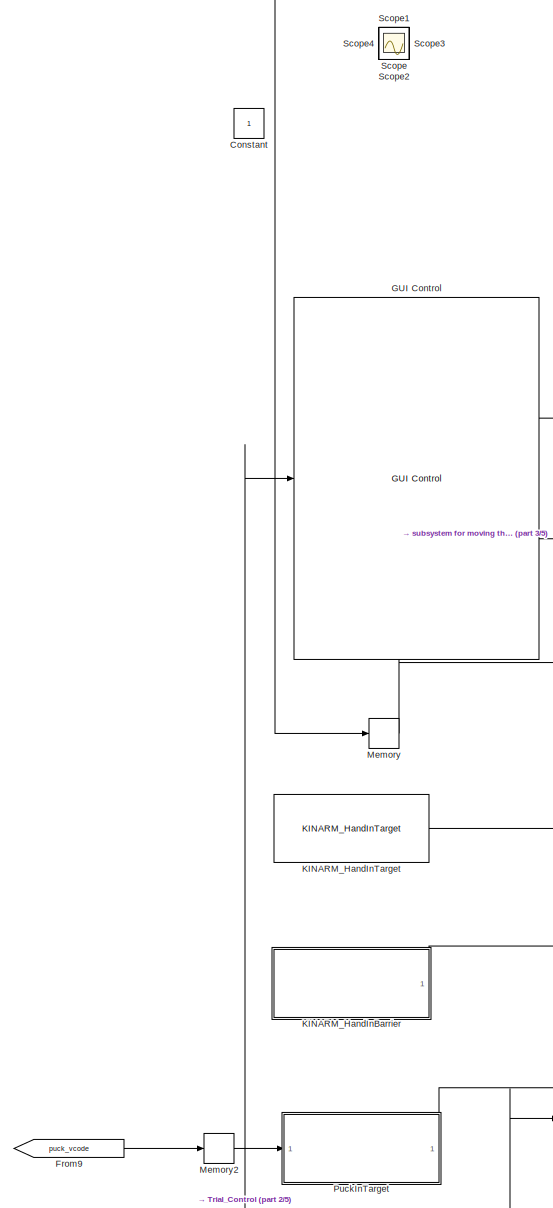
[diagram: root canvas - part 1/5, middle left region]
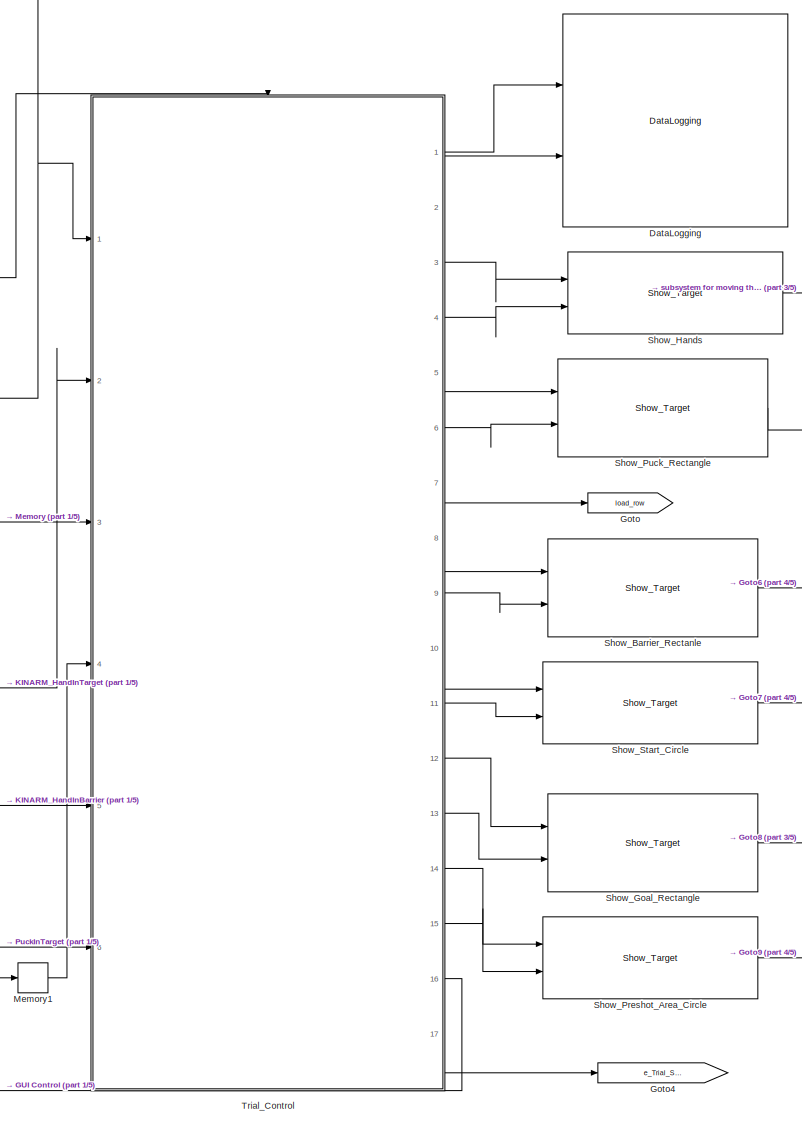
[diagram: root canvas - part 2/5, central region]
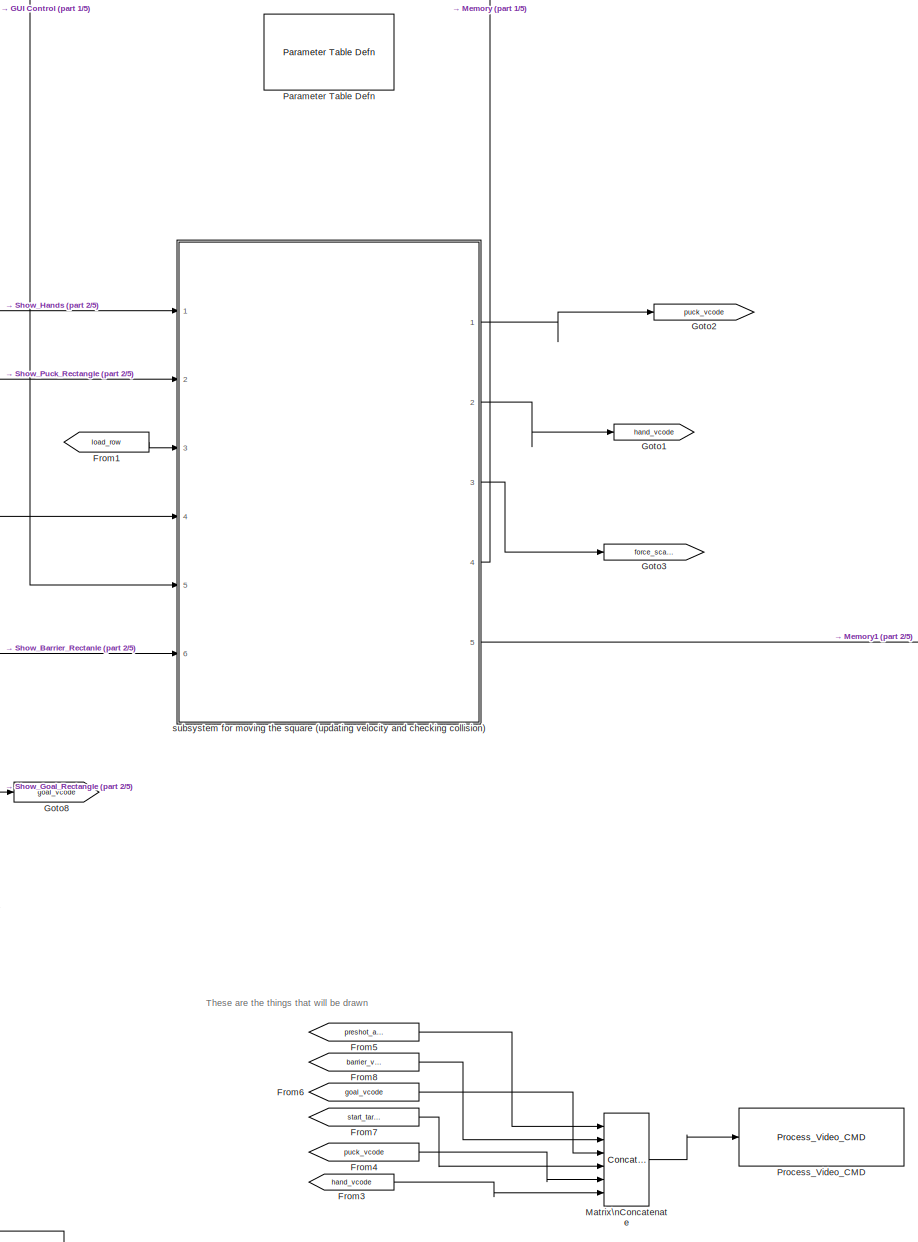
[diagram: root canvas - part 3/5, right side, full height]
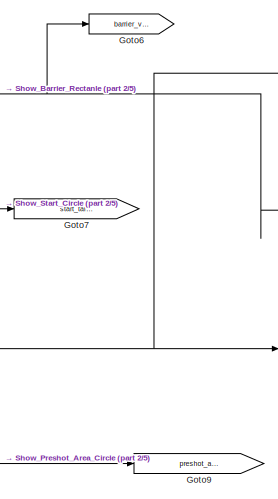
[diagram: root canvas - part 4/5, central region]
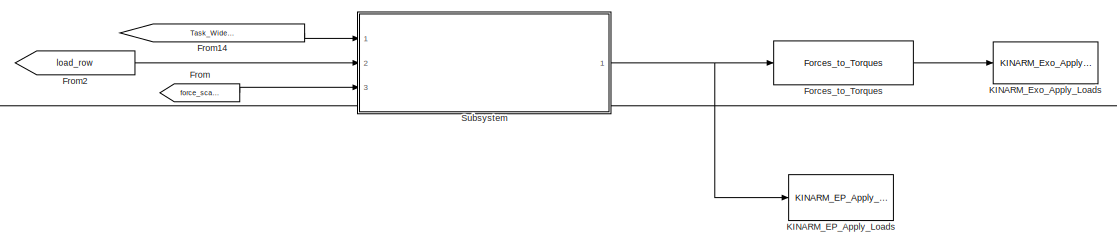
[diagram: root canvas - part 5/5, bottom center region]
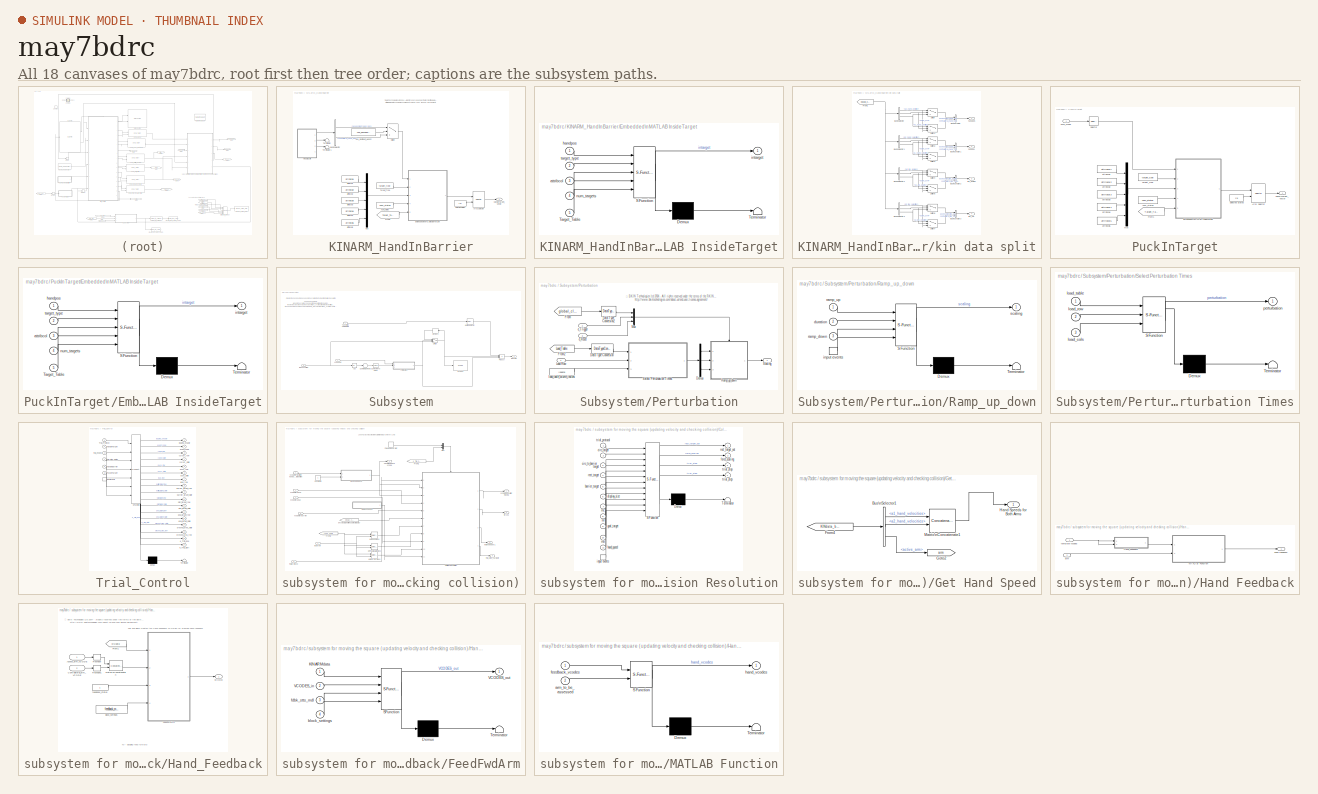
[diagram: thumbnail index - all 18 canvases of the model, root first then tree order]
MODEL may7bdrc
KIND model
CONFIG StartFcn =  warndlg('Dexterit-E models cannot run under simulation. Please compile your model and run it from within Dexterit-E.');set_param(bdroot,'SimulationCommand','stop')
BLOCK [Constant] Constant
  IOType = siggen
  SID = 11
BLOCK [Reference] DataLogging  REF=General/DataLogging
  Ports = [2]
  RTWMemSecDataConstants = Inherit from model
  RTWMemSecDataInternal = Inherit from model
  RTWMemSecDataParameters = Inherit from model
  RTWMemSecFuncExecute = Inherit from model
  RTWMemSecFuncInitTerm = Inherit from model
  SID = 14
  SourceBlock = General/DataLogging
  SourceType = DataLogging
  ecat_include = on
  log_analog_inputs = off
  log_event_codes = on
  show_time_remaining = off
BLOCK [Reference] Forces_to_Torques  REF=KINARM_loads/Forces_to_Torques
  Ports = [1, 1]
  RTWMemSecDataConstants = Inherit from model
  RTWMemSecDataInternal = Inherit from model
  RTWMemSecDataParameters = Inherit from model
  RTWMemSecFuncExecute = Inherit from model
  RTWMemSecFuncInitTerm = Inherit from model
  SID = 215
  SourceBlock = KINARM_loads/Forces_to_Torques
  SourceType = Forces_to_Torques
BLOCK [From] From
  GotoTag = force_scaling
  SID = 165
BLOCK [From] From1
  GotoTag = load_row
  SID = 275
BLOCK [From] From14
  GotoTag = Task_Wide_Parameters
  SID = 213
  TagVisibility = global
BLOCK [From] From2
  GotoTag = load_row
  SID = 170
BLOCK [From] From3
  GotoTag = hand_vcode
  SID = 126
BLOCK [From] From4
  GotoTag = puck_vcode
  SID = 222
BLOCK [From] From5
  GotoTag = preshot_area_vcode
  SID = 324
BLOCK [From] From6
  GotoTag = goal_vcode
  SID = 325
BLOCK [From] From7
  GotoTag = start_target_vcode
  SID = 326
BLOCK [From] From8
  GotoTag = barrier_vcode
  SID = 327
BLOCK [From] From9
  GotoTag = puck_vcode
  SID = 332
BLOCK [Reference] GUI Control  REF=General/GUI Control
  Lcols = 4
  Ports = [1, 2]
  RTWMemSecDataConstants = Inherit from model
  RTWMemSecDataInternal = Inherit from model
  RTWMemSecDataParameters = Inherit from model
  RTWMemSecFuncExecute = Inherit from model
  RTWMemSecFuncInitTerm = Inherit from model
  SID = 4
  SourceBlock = General/GUI Control
  SourceType = GUI Control
  Target_Type = 1
  Vcols = 3
  XYcols = [1 2]
  indices_padding = [0 0 0 0;0 0 0 0]
  load_table_rows = 20
  show_repeat_trial_flag = off
  target_table_rows = 64
  target_type_str = Circle
  task_version = 1.0
  tp_table_rows = 100
  use_custom_tp = off
BLOCK [Goto] Goto
  GotoTag = load_row
  SID = 118
BLOCK [Goto] Goto1
  GotoTag = hand_vcode
  SID = 125
BLOCK [Goto] Goto2
  GotoTag = puck_vcode
  SID = 221
BLOCK [Goto] Goto3
  GotoTag = force_scaling
  SID = 164
BLOCK [Goto] Goto4
  GotoTag = e_Trial_Start
  SID = 335
BLOCK [Goto] Goto6
  GotoTag = barrier_vcode
  SID = 320
BLOCK [Goto] Goto7
  GotoTag = start_target_vcode
  SID = 321
BLOCK [Goto] Goto8
  GotoTag = goal_vcode
  SID = 322
BLOCK [Goto] Goto9
  GotoTag = preshot_area_vcode
  SID = 323
BLOCK [Reference] KINARM_EP_Apply_Loads  REF=KINARM_EP_loads/KINARM_EP_Apply_Loads
  Ports = [1]
  RTWMemSecDataConstants = Inherit from model
  RTWMemSecDataInternal = Inherit from model
  RTWMemSecDataParameters = Inherit from model
  RTWMemSecFuncExecute = Inherit from model
  RTWMemSecFuncInitTerm = Inherit from model
  SID = 225
  SourceBlock = KINARM_EP_loads/KINARM_EP_Apply_Loads
  SourceType = KINARM_EP_Apply_Loads
  down_duration = 1500
  max_force = 20
  up_duration = 1500
BLOCK [Reference] KINARM_Exo_Apply_Loads  REF=KINARM_loads/KINARM_Exo_Apply_Loads
  Ports = [1]
  RTWMemSecDataConstants = Inherit from model
  RTWMemSecDataInternal = Inherit from model
  RTWMemSecDataParameters = Inherit from model
  RTWMemSecFuncExecute = Inherit from model
  RTWMemSecFuncInitTerm = Inherit from model
  SID = 212
  SourceBlock = KINARM_loads/KINARM_Exo_Apply_Loads
  SourceType = KINARM_Exo_Apply_Loads
  down_duration = 1500
  limit_motors = off
  max_torque = 5
  up_duration = 1500
BLOCK [SubSystem] KINARM_HandInBarrier
  AncestorBlock = KINARM_general/KINARM_HandInTarget
  Ports = [0, 1]
  RequestExecContextInheritance = off
  SID = 328
BLOCK [Selector] KINARM_HandInBarrier/Array Selector
  IndexOptions = Select all,Index vector (port)
  Indices = -1,1
  InputPortWidth = 3
  NumberOfDimensions = 2
  OutputSizes = slselsubs([(-2),(-2)],1),slselsubs([(-2),(-2)],2)
  Ports = [2, 1]
  SID = 328:3
BLOCK [BusSelector] KINARM_HandInBarrier/Bus\nSelector
  OutputSignals = assessment_hand_pos,contralateral_hand_pos
  Ports = [1, 2]
  SID = 328:23
BLOCK [SubSystem] KINARM_HandInBarrier/Embedded\nMATLAB InsideTarget
  ErrorFcn = Stateflow.Translate.translate
  PermitHierarchicalResolution = ParametersOnly
  Ports = [5, 1]
  RTWFileNameOpts = Use function name
  RTWSystemCode = Nonreusable function
  RequestExecContextInheritance = off
  SFBlockType = MATLAB Function
  SID = 328:5
  TreatAsAtomicUnit = on
BLOCK [Demux] KINARM_HandInBarrier/Embedded\nMATLAB InsideTarget/ Demux 
  Outputs = 1
  Ports = [1, 1]
  SID = 328:5::42
BLOCK [S-Function] KINARM_HandInBarrier/Embedded\nMATLAB InsideTarget/ SFunction 
  EnableBusSupport = on
  FunctionName = sf_sfun
  PortCounts = [5 2]
  Ports = [5, 2]
  SFunctionDeploymentMode = off
  SID = 328:5::41
  Tag = Stateflow S-Function may7bdrc 7
BLOCK [Terminator] KINARM_HandInBarrier/Embedded\nMATLAB InsideTarget/ Terminator 
  SID = 328:5::43
BLOCK [Inport] KINARM_HandInBarrier/Embedded\nMATLAB InsideTarget/Target_Table
  IconDisplay = Port number
  Port = 5
  SID = 328:5::5
BLOCK [Inport] KINARM_HandInBarrier/Embedded\nMATLAB InsideTarget/attribcol
  IconDisplay = Port number
  Port = 3
  SID = 328:5::3
BLOCK [Inport] KINARM_HandInBarrier/Embedded\nMATLAB InsideTarget/handpos
  IconDisplay = Port number
  SID = 328:5::1
BLOCK [Outport] KINARM_HandInBarrier/Embedded\nMATLAB InsideTarget/intarget
  IconDisplay = Port number
  SID = 328:5::9
BLOCK [Inport] KINARM_HandInBarrier/Embedded\nMATLAB InsideTarget/num_targets
  IconDisplay = Port number
  Port = 4
  SID = 328:5::4
BLOCK [Inport] KINARM_HandInBarrier/Embedded\nMATLAB InsideTarget/target_type
  IconDisplay = Port number
  Port = 2
  SID = 328:5::2
BLOCK [From] KINARM_HandInBarrier/From1
  CloseFcn = tagdialog Close
  GotoTag = Target_Table
  SID = 328:8
  TagVisibility = global
BLOCK [Outport] KINARM_HandInBarrier/HandInTarget_Vector
  IconDisplay = Port number
  SID = 328:21
BLOCK [Mux] KINARM_HandInBarrier/Mux
  DisplayOption = bar
  Inputs = 5
  Ports = [5, 1]
  SID = 328:11
BLOCK [Constant] KINARM_HandInBarrier/Selected States
  SID = 328:12
  Value = [1]
BLOCK [Switch] KINARM_HandInBarrier/Switch
  Criteria = u2 > Threshold
  InputSameDT = off
  SID = 328:24
  SaturateOnIntegerOverflow = off
BLOCK [Constant] KINARM_HandInBarrier/Target_Type
  SID = 328:13
  Value = target_type
BLOCK [Terminator] KINARM_HandInBarrier/Terminator
  SID = 328:25
BLOCK [Terminator] KINARM_HandInBarrier/Terminator1
  SID = 328:26
BLOCK [Constant] KINARM_HandInBarrier/Use_Dominant_Hand?
  SID = 328:27
  Value = use_dominant_hand
BLOCK [Constant] KINARM_HandInBarrier/attribcol1
  SID = 328:15
  Value = attribcol1
BLOCK [Constant] KINARM_HandInBarrier/attribcol2
  SID = 328:16
  Value = attribcol2
BLOCK [Constant] KINARM_HandInBarrier/attribcol3
  SID = 328:17
  Value = attribcol3
BLOCK [Constant] KINARM_HandInBarrier/attribcol4
  SID = 328:18
  Value = attribcol4
BLOCK [Constant] KINARM_HandInBarrier/attribcol5
  SID = 328:19
  Value = attribcol5
BLOCK [SubSystem] KINARM_HandInBarrier/kin data split
  Ports = [0, 4]
  RequestExecContextInheritance = off
  SID = 328:28
BLOCK [BusCreator] KINARM_HandInBarrier/kin data split/Bus\nCreator
  DisplayOption = bar
  InheritFromInputs = on
  Inputs = 2
  Ports = [2, 1]
  SID = 328:29
BLOCK [BusCreator] KINARM_HandInBarrier/kin data split/Bus\nCreator1
  DisplayOption = bar
  InheritFromInputs = on
  Inputs = 2
  Ports = [2, 1]
  SID = 328:30
BLOCK [BusCreator] KINARM_HandInBarrier/kin data split/Bus\nCreator2
  DisplayOption = bar
  InheritFromInputs = on
  Inputs = 2
  Ports = [2, 1]
  SID = 328:31
BLOCK [BusCreator] KINARM_HandInBarrier/kin data split/Bus\nCreator3
  DisplayOption = bar
  InheritFromInputs = on
  Inputs = 2
  Ports = [2, 1]
  SID = 328:32
BLOCK [BusSelector] KINARM_HandInBarrier/kin data split/Bus\nSelector
  OutputSignals = Robot2.a2_hand_position,KINDataGeneral.active_arm,Robot1.a1_hand_position
  Ports = [1, 3]
  SID = 328:33
BLOCK [BusSelector] KINARM_HandInBarrier/kin data split/Bus\nSelector1
  OutputSignals = Robot2.a2_hand_velocities,KINDataGeneral.active_arm,Robot1.a1_hand_velocities
  Ports = [1, 3]
  SID = 328:34
BLOCK [BusSelector] KINARM_HandInBarrier/kin data split/Bus\nSelector2
  OutputSignals = Robot2.a2_link_angles,KINDataGeneral.active_arm,Robot1.a1_link_angles
  Ports = [1, 3]
  SID = 328:35
BLOCK [BusSelector] KINARM_HandInBarrier/kin data split/Bus\nSelector3
  OutputSignals = Robot2.a2_link_velocities,KINDataGeneral.active_arm,Robot1.a1_link_velocities
  Ports = [1, 3]
  SID = 328:36
BLOCK [From] KINARM_HandInBarrier/kin data split/From1
  CloseFcn = tagdialog Close
  GotoTag = KINdata_bus
  SID = 328:37
  TagVisibility = global
BLOCK [Switch] KINARM_HandInBarrier/kin data split/Switch
  Criteria = u2 > Threshold
  InputSameDT = off
  SID = 328:38
  SaturateOnIntegerOverflow = off
  Threshold = 1
BLOCK [Switch] KINARM_HandInBarrier/kin data split/Switch1
  Criteria = u2 > Threshold
  InputSameDT = off
  SID = 328:39
  SaturateOnIntegerOverflow = off
  Threshold = 1
BLOCK [Switch] KINARM_HandInBarrier/kin data split/Switch2
  Criteria = u2 > Threshold
  InputSameDT = off
  SID = 328:40
  SaturateOnIntegerOverflow = off
  Threshold = 1
BLOCK [Switch] KINARM_HandInBarrier/kin data split/Switch3
  Criteria = u2 > Threshold
  InputSameDT = off
  SID = 328:41
  SaturateOnIntegerOverflow = off
  Threshold = 1
BLOCK [Switch] KINARM_HandInBarrier/kin data split/Switch4
  Criteria = u2 > Threshold
  InputSameDT = off
  SID = 328:42
  SaturateOnIntegerOverflow = off
  Threshold = 1
BLOCK [Switch] KINARM_HandInBarrier/kin data split/Switch5
  Criteria = u2 > Threshold
  InputSameDT = off
  SID = 328:43
  SaturateOnIntegerOverflow = off
  Threshold = 1
BLOCK [Switch] KINARM_HandInBarrier/kin data split/Switch6
  Criteria = u2 > Threshold
  InputSameDT = off
  SID = 328:44
  SaturateOnIntegerOverflow = off
  Threshold = 1
BLOCK [Switch] KINARM_HandInBarrier/kin data split/Switch7
  Criteria = u2 > Threshold
  InputSameDT = off
  SID = 328:45
  SaturateOnIntegerOverflow = off
  Threshold = 1
BLOCK [Outport] KINARM_HandInBarrier/kin data split/hand pos
  IconDisplay = Port number
  SID = 328:46
BLOCK [Outport] KINARM_HandInBarrier/kin data split/hand vel
  IconDisplay = Port number
  Port = 2
  SID = 328:47
BLOCK [Outport] KINARM_HandInBarrier/kin data split/link_angles
  IconDisplay = Port number
  Port = 3
  SID = 328:48
BLOCK [Outport] KINARM_HandInBarrier/kin data split/link_vel
  IconDisplay = Port number
  Port = 4
  SID = 328:49
BLOCK [Constant] KINARM_HandInBarrier/num_states
  SID = 328:20
  Value = num_states
BLOCK [Reference] KINARM_HandInTarget  REF=KINARM_general/KINARM_HandInTarget
  Ports = [0, 1]
  RTWMemSecDataConstants = Inherit from model
  RTWMemSecDataInternal = Inherit from model
  RTWMemSecDataParameters = Inherit from model
  RTWMemSecFuncExecute = Inherit from model
  RTWMemSecFuncInitTerm = Inherit from model
  SID = 279
  SourceBlock = KINARM_general/KINARM_HandInTarget
  SourceType = KINARM_HandInTarget
  attribcol1 = [RADIUS_LOG]
  attribcol2 = [0]
  attribcol3 = [0]
  attribcol4 = [0]
  attribcol5 = [0]
  num_states = 1
  target_type = Circle
  use_dominant_hand = on
BLOCK [Concatenate] Matrix\nConcatenate
  Mode = Multidimensional array
  NumInputs = 6
  Ports = [6, 1]
  SID = 58
BLOCK [Memory] Memory
  SID = 300
BLOCK [Memory] Memory1
  SID = 302
BLOCK [Memory] Memory2
  SID = 333
BLOCK [Reference] Parameter Table Defn  REF=General/Parameter Table Defn
  Ports = []
  RTWMemSecDataConstants = Inherit from model
  RTWMemSecDataInternal = Inherit from model
  RTWMemSecDataParameters = Inherit from model
  RTWMemSecFuncExecute = Inherit from model
  RTWMemSecFuncInitTerm = Inherit from model
  SID = 7
  ShowInLibBrowser = 0
  SourceBlock = General/Parameter Table Defn
  UserData = DataTag1
  UserDataPersistent = on
BLOCK [Reference] Process_Video_CMD  REF=Video/Process_Video_CMD
  Ports = [1]
  RTWMemSecDataConstants = Inherit from model
  RTWMemSecDataInternal = Inherit from model
  RTWMemSecDataParameters = Inherit from model
  RTWMemSecFuncExecute = Inherit from model
  RTWMemSecFuncInitTerm = Inherit from model
  SID = 8
  SourceBlock = Video/Process_Video_CMD
  SourceType = Process_Video_CMD
  video_delay = 0
BLOCK [SubSystem] PuckInTarget
  AncestorBlock = KINARM_general/KINARM_HandInTarget
  Ports = [1, 1]
  RequestExecContextInheritance = off
  SID = 331
BLOCK [Selector] PuckInTarget/Array Selector
  IndexOptions = Select all,Index vector (port)
  Indices = -1,1
  InputPortWidth = 3
  NumberOfDimensions = 2
  OutputSizes = slselsubs([(-2),(-2)],1),slselsubs([(-2),(-2)],2)
  Ports = [2, 1]
  SID = 331:3
BLOCK [SubSystem] PuckInTarget/Embedded\nMATLAB InsideTarget
  ErrorFcn = Stateflow.Translate.translate
  PermitHierarchicalResolution = ParametersOnly
  Ports = [5, 1]
  RTWFileNameOpts = Use function name
  RTWSystemCode = Nonreusable function
  RequestExecContextInheritance = off
  SFBlockType = MATLAB Function
  SID = 331:5
  TreatAsAtomicUnit = on
BLOCK [Demux] PuckInTarget/Embedded\nMATLAB InsideTarget/ Demux 
  Outputs = 1
  Ports = [1, 1]
  SID = 331:5::42
BLOCK [S-Function] PuckInTarget/Embedded\nMATLAB InsideTarget/ SFunction 
  EnableBusSupport = on
  FunctionName = sf_sfun
  PortCounts = [5 2]
  Ports = [5, 2]
  SFunctionDeploymentMode = off
  SID = 331:5::41
  Tag = Stateflow S-Function may7bdrc 5
BLOCK [Terminator] PuckInTarget/Embedded\nMATLAB InsideTarget/ Terminator 
  SID = 331:5::43
BLOCK [Inport] PuckInTarget/Embedded\nMATLAB InsideTarget/Target_Table
  IconDisplay = Port number
  Port = 5
  SID = 331:5::5
BLOCK [Inport] PuckInTarget/Embedded\nMATLAB InsideTarget/attribcol
  IconDisplay = Port number
  Port = 3
  SID = 331:5::3
BLOCK [Inport] PuckInTarget/Embedded\nMATLAB InsideTarget/handpos
  IconDisplay = Port number
  SID = 331:5::1
BLOCK [Outport] PuckInTarget/Embedded\nMATLAB InsideTarget/intarget
  IconDisplay = Port number
  SID = 331:5::9
BLOCK [Inport] PuckInTarget/Embedded\nMATLAB InsideTarget/num_targets
  IconDisplay = Port number
  Port = 4
  SID = 331:5::4
BLOCK [Inport] PuckInTarget/Embedded\nMATLAB InsideTarget/target_type
  IconDisplay = Port number
  Port = 2
  SID = 331:5::2
BLOCK [From] PuckInTarget/From1
  CloseFcn = tagdialog Close
  GotoTag = Target_Table
  SID = 331:8
  TagVisibility = global
BLOCK [Outport] PuckInTarget/HandInTarget_Vector
  IconDisplay = Port number
  SID = 331:21
BLOCK [Mux] PuckInTarget/Mux
  DisplayOption = bar
  Inputs = 5
  Ports = [5, 1]
  SID = 331:11
BLOCK [Constant] PuckInTarget/Selected States
  SID = 331:12
  Value = [1]
BLOCK [Selector] PuckInTarget/Selector
  IndexOptions = Index vector (dialog),Index vector (dialog)
  Indices = 1,[3,4]
  InputPortWidth = 3
  NumberOfDimensions = 2
  OutputSizes = 1,1
  Ports = [1, 1]
  SID = 331:53
BLOCK [Constant] PuckInTarget/Target_Type
  SID = 331:13
  Value = target_type
BLOCK [Constant] PuckInTarget/attribcol1
  SID = 331:15
  Value = attribcol1
BLOCK [Constant] PuckInTarget/attribcol2
  SID = 331:16
  Value = attribcol2
BLOCK [Constant] PuckInTarget/attribcol3
  SID = 331:17
  Value = attribcol3
BLOCK [Constant] PuckInTarget/attribcol4
  SID = 331:18
  Value = attribcol4
BLOCK [Constant] PuckInTarget/attribcol5
  SID = 331:19
  Value = attribcol5
BLOCK [Constant] PuckInTarget/num_states
  SID = 331:20
  Value = num_states
BLOCK [Inport] PuckInTarget/puck_vcode
  IconDisplay = Port number
  PortDimensions = [1,70]
  SID = 331:50
BLOCK [Scope] Scope
  DataFormat = StructureWithTime
  Decimation = 1
  Floating = off
  Grid = on
  IOType = viewer
  LimitDataPoints = off
  MaxDataPoints = 5000
  NumInputPorts = 1
  Ports = []
  SID = 294
  SampleInput = off
  SampleTime = -1
  SaveName = ScopeData
  SaveToWorkspace = off
  ShowLegends = off
  TickLabels = OneTimeTick
  TimeRange = auto
  YMax = 10.00000
  YMin = -10.00000
  ZoomMode = on
BLOCK [Scope] Scope1
  DataFormat = StructureWithTime
  Decimation = 1
  Floating = off
  Grid = on
  IOType = viewer
  LimitDataPoints = off
  MaxDataPoints = 5000
  NumInputPorts = 1
  Ports = []
  SID = 295
  SampleInput = off
  SampleTime = -1
  SaveName = ScopeData1
  SaveToWorkspace = off
  ShowLegends = off
  TickLabels = OneTimeTick
  TimeRange = auto
  YMax = 10.00000
  YMin = -10.00000
  ZoomMode = on
BLOCK [Scope] Scope2
  DataFormat = StructureWithTime
  Decimation = 1
  Floating = off
  Grid = on
  IOType = viewer
  LimitDataPoints = off
  MaxDataPoints = 5000
  NumInputPorts = 1
  Ports = []
  SID = 296
  SampleInput = off
  SampleTime = -1
  SaveName = ScopeData2
  SaveToWorkspace = off
  ShowLegends = off
  TickLabels = OneTimeTick
  TimeRange = auto
  YMax = 10.00000
  YMin = -10.00000
  ZoomMode = on
BLOCK [Scope] Scope3
  DataFormat = StructureWithTime
  Decimation = 1
  Floating = off
  Grid = on
  IOType = viewer
  LimitDataPoints = off
  MaxDataPoints = 5000
  NumInputPorts = 1
  Ports = []
  SID = 297
  SampleInput = off
  SampleTime = -1
  SaveName = ScopeData3
  SaveToWorkspace = off
  ShowLegends = off
  TickLabels = OneTimeTick
  TimeRange = auto
  YMax = 10.00000
  YMin = -10.00000
  ZoomMode = on
BLOCK [Scope] Scope4
  DataFormat = StructureWithTime
  Decimation = 1
  Floating = off
  Grid = on
  IOType = viewer
  LimitDataPoints = off
  MaxDataPoints = 5000
  NumInputPorts = 1
  Ports = []
  SID = 298
  SampleInput = off
  SampleTime = -1
  SaveName = ScopeData4
  SaveToWorkspace = off
  ShowLegends = off
  TickLabels = OneTimeTick
  TimeRange = auto
  YMax = 10.00000
  YMin = -10.00000
  ZoomMode = on
BLOCK [Reference] Show_Barrier_Rectanle  REF=Video/Show_Target
  Ports = [2, 1]
  RTWMemSecDataConstants = Inherit from model
  RTWMemSecDataInternal = Inherit from model
  RTWMemSecDataParameters = Inherit from model
  RTWMemSecFuncExecute = Inherit from model
  RTWMemSecFuncInitTerm = Inherit from model
  SID = 313
  SourceBlock = Video/Show_Target
  SourceType = Show_Target
  attribcol1 = [FIRST_STATE_FILL RECT_STROKE RECT_STROKE_W WIDTH HEIGHT ROTATION]
  attribcol2 = [SECOND_STATE_FILL RECT_STROKE RECT_STROKE_W WIDTH HEIGHT ROTATION]
  attribcol3 = [0 0 0 0 0 0]
  attribcol4 = [0 0 0 0 0 0]
  attribcol5 = [0 0 0 0 0 0]
  num_col = 6
  num_states = 2
  opacity = 100
  source = dialog
  stateindices_padding = [0 0 0 0 0;0 0 0 0 0;0 0 0 0 0;0 0 0 0 0;0 0 0 0 0]
  target_display = Both subject and operator displays
  target_type = Rectangle
BLOCK [Reference] Show_Goal_Rectangle  REF=Video/Show_Target
  Ports = [2, 1]
  RTWMemSecDataConstants = Inherit from model
  RTWMemSecDataInternal = Inherit from model
  RTWMemSecDataParameters = Inherit from model
  RTWMemSecFuncExecute = Inherit from model
  RTWMemSecFuncInitTerm = Inherit from model
  SID = 278
  SourceBlock = Video/Show_Target
  SourceType = Show_Target
  attribcol1 = [INVISIBLE_FILL RECT_STROKE RECT_STROKE_W WIDTH HEIGHT ROTATION]
  attribcol2 = [FIRST_STATE_FILL RECT_STROKE RECT_STROKE_W WIDTH HEIGHT ROTATION]
  attribcol3 = [SECOND_STATE_FILL RECT_STROKE RECT_STROKE_W WIDTH HEIGHT ROTATION]
  attribcol4 = [0 0 0 0 0 0]
  attribcol5 = [0 0 0 0 0 0]
  num_col = 6
  num_states = 3
  opacity = 100
  source = dialog
  stateindices_padding = [0 0 0 0 0;0 0 0 0 0;0 0 0 0 0;0 0 0 0 0;0 0 0 0 0]
  target_display = Both subject and operator displays
  target_type = Rectangle
BLOCK [Reference] Show_Hands  REF=Video/Show_Target
  Ports = [2, 1]
  RTWMemSecDataConstants = Inherit from model
  RTWMemSecDataInternal = Inherit from model
  RTWMemSecDataParameters = Inherit from model
  RTWMemSecFuncExecute = Inherit from model
  RTWMemSecFuncInitTerm = Inherit from model
  SID = 55
  SourceBlock = Video/Show_Target
  SourceType = Show_Target
  attribcol1 = [FIRST_STATE_FILL CIRCLE_STROKE CIRCLE_STROKE_W WIDTH]
  attribcol2 = [SECOND_STATE_FILL CIRCLE_STROKE CIRCLE_STROKE_W WIDTH]
  attribcol3 = [0 0 0 0]
  attribcol4 = [0 0 0 0]
  attribcol5 = [0 0 0 0]
  num_col = 4
  num_states = 2
  opacity = 100
  source = dialog
  stateindices_padding = [0 0 0 0 0 0 0;0 0 0 0 0 0 0;0 0 0 0 0 0 0;0 0 0 0 0 0 0;0 0 0 0 0 0 0]
  target_display = Both subject and operator displays
  target_type = Circle
BLOCK [Reference] Show_Preshot_Area_Circle  REF=Video/Show_Target
  Ports = [2, 1]
  RTWMemSecDataConstants = Inherit from model
  RTWMemSecDataInternal = Inherit from model
  RTWMemSecDataParameters = Inherit from model
  RTWMemSecFuncExecute = Inherit from model
  RTWMemSecFuncInitTerm = Inherit from model
  SID = 316
  SourceBlock = Video/Show_Target
  SourceType = Show_Target
  attribcol1 = [INVISIBLE_FILL CIRCLE_STROKE CIRCLE_STROKE_W WIDTH]
  attribcol2 = [FIRST_STATE_FILL CIRCLE_STROKE CIRCLE_STROKE_W WIDTH]
  attribcol3 = [SECOND_STATE_FILL CIRCLE_STROKE CIRCLE_STROKE_W WIDTH]
  attribcol4 = [0 0 0 0]
  attribcol5 = [0 0 0 0]
  num_col = 4
  num_states = 3
  opacity = 100
  source = dialog
  stateindices_padding = [0 0 0 0 0 0 0;0 0 0 0 0 0 0;0 0 0 0 0 0 0;0 0 0 0 0 0 0;0 0 0 0 0 0 0]
  target_display = Both subject and operator displays
  target_type = Circle
BLOCK [Reference] Show_Puck_Rectangle  REF=Video/Show_Target
  Ports = [2, 1]
  RTWMemSecDataConstants = Inherit from model
  RTWMemSecDataInternal = Inherit from model
  RTWMemSecDataParameters = Inherit from model
  RTWMemSecFuncExecute = Inherit from model
  RTWMemSecFuncInitTerm = Inherit from model
  SID = 56
  SourceBlock = Video/Show_Target
  SourceType = Show_Target
  attribcol1 = [INVISIBLE_FILL RECT_STROKE RECT_STROKE_W WIDTH HEIGHT ROTATION]
  attribcol2 = [FIRST_STATE_FILL RECT_STROKE RECT_STROKE_W WIDTH HEIGHT ROTATION]
  attribcol3 = [SECOND_STATE_FILL RECT_STROKE RECT_STROKE_W WIDTH HEIGHT ROTATION]
  attribcol4 = [0 0 0 0 0 0]
  attribcol5 = [0 0 0 0 0 0]
  num_col = 6
  num_states = 3
  opacity = 100
  source = dialog
  stateindices_padding = [0 0 0 0 0;0 0 0 0 0;0 0 0 0 0;0 0 0 0 0;0 0 0 0 0]
  target_display = Both subject and operator displays
  target_type = Rectangle
BLOCK [Reference] Show_Start_Circle  REF=Video/Show_Target
  Ports = [2, 1]
  RTWMemSecDataConstants = Inherit from model
  RTWMemSecDataInternal = Inherit from model
  RTWMemSecDataParameters = Inherit from model
  RTWMemSecFuncExecute = Inherit from model
  RTWMemSecFuncInitTerm = Inherit from model
  SID = 277
  SourceBlock = Video/Show_Target
  SourceType = Show_Target
  attribcol1 = [INVISIBLE_FILL CIRCLE_STROKE CIRCLE_STROKE_W WIDTH]
  attribcol2 = [FIRST_STATE_FILL CIRCLE_STROKE CIRCLE_STROKE_W WIDTH]
  attribcol3 = [SECOND_STATE_FILL CIRCLE_STROKE CIRCLE_STROKE_W WIDTH]
  attribcol4 = [0 0 0 0]
  attribcol5 = [0 0 0 0]
  num_col = 4
  num_states = 3
  opacity = 100
  source = dialog
  stateindices_padding = [0 0 0 0 0 0 0;0 0 0 0 0 0 0;0 0 0 0 0 0 0;0 0 0 0 0 0 0;0 0 0 0 0 0 0]
  target_display = Both subject and operator displays
  target_type = Circle
BLOCK [SubSystem] Subsystem
  Ports = [3, 1]
  RequestExecContextInheritance = off
  SID = 267
BLOCK [Abs] Subsystem/Abs
  SID = 194
  SaturateOnIntegerOverflow = off
BLOCK [Reference] Subsystem/Compare\nTo Zero1  REF=simulink/Logic and Bit\nOperations/Compare\nTo Zero
  OutDataTypeStr = uint8
  Ports = [1, 1]
  RTWMemSecDataConstants = Inherit from model
  RTWMemSecDataInternal = Inherit from model
  RTWMemSecDataParameters = Inherit from model
  RTWMemSecFuncExecute = Inherit from model
  RTWMemSecFuncInitTerm = Inherit from model
  SID = 195
  SourceBlock = simulink/Logic and Bit\nOperations/Compare\nTo Zero
  SourceType = Compare To Zero
  ZeroCross = off
  relop = ~=
BLOCK [Inport] Subsystem/Load Row
  IconDisplay = Port number
  Port = 2
  SID = 269
BLOCK [Memory] Subsystem/Memory3
  InheritSampleTime = on
  SID = 199
BLOCK [SubSystem] Subsystem/Perturbation
  AncestorBlock = KINARM_loads/Perturbation
  Ports = [3, 1]
  RequestExecContextInheritance = off
  SID = 196
BLOCK [DataTypeConversion] Subsystem/Perturbation/Data Type Conversion
  RndMeth = Floor
  SID = 196:4
  SaturateOnIntegerOverflow = off
BLOCK [DataTypeConversion] Subsystem/Perturbation/Data Type Conversion2
  RndMeth = Floor
  SID = 196:5
  SaturateOnIntegerOverflow = off
BLOCK [Demux] Subsystem/Perturbation/Demux
  DisplayOption = bar
  Outputs = 3
  Ports = [1, 3]
  SID = 196:6
BLOCK [From] Subsystem/Perturbation/From
  CloseFcn = tagdialog Close
  GotoTag = global_clock
  SID = 196:7
  TagVisibility = global
BLOCK [From] Subsystem/Perturbation/From2
  CloseFcn = tagdialog Close
  GotoTag = Load_Table
  SID = 196:8
  TagVisibility = global
BLOCK [Inport] Subsystem/Perturbation/Load Row
  IconDisplay = Port number
  SID = 196:1
BLOCK [Mux] Subsystem/Perturbation/Mux
  DisplayOption = bar
  Inputs = 3
  Ports = [3, 1]
  SID = 196:9
BLOCK [SubSystem] Subsystem/Perturbation/Ramp_up_down
  ErrorFcn = Stateflow.Translate.translate
  PermitHierarchicalResolution = ParametersOnly
  Ports = [3, 1, 0, 1]
  RequestExecContextInheritance = off
  SFBlockType = Chart
  SID = 196:10
  TreatAsAtomicUnit = on
BLOCK [Demux] Subsystem/Perturbation/Ramp_up_down/ Demux 
  Outputs = 1
  Ports = [1, 1]
  SID = 196:10::48
BLOCK [S-Function] Subsystem/Perturbation/Ramp_up_down/ SFunction 
  EnableBusSupport = on
  FunctionName = sf_sfun
  PortCounts = [4 2]
  Ports = [4, 2]
  SFunctionDeploymentMode = off
  SID = 196:10::47
  Tag = Stateflow S-Function may7bdrc 8
BLOCK [Terminator] Subsystem/Perturbation/Ramp_up_down/ Terminator 
  SID = 196:10::49
BLOCK [TriggerPort] Subsystem/Perturbation/Ramp_up_down/ input events 
  Ports = [0, 1]
  SID = 196:10::4
  ShowOutputPort = on
  TriggerType = either
BLOCK [Inport] Subsystem/Perturbation/Ramp_up_down/duration
  IconDisplay = Port number
  Port = 2
  SID = 196:10::2
BLOCK [Inport] Subsystem/Perturbation/Ramp_up_down/ramp_down
  IconDisplay = Port number
  Port = 3
  SID = 196:10::3
BLOCK [Inport] Subsystem/Perturbation/Ramp_up_down/ramp_up
  IconDisplay = Port number
  SID = 196:10::1
BLOCK [Outport] Subsystem/Perturbation/Ramp_up_down/scaling
  IconDisplay = Port number
  SID = 196:10::8
BLOCK [Outport] Subsystem/Perturbation/Scaling
  IconDisplay = Port number
  SID = 196:13
BLOCK [SubSystem] Subsystem/Perturbation/Select Perturbation Times
  ErrorFcn = Stateflow.Translate.translate
  PermitHierarchicalResolution = ParametersOnly
  Ports = [3, 1]
  RequestExecContextInheritance = off
  SFBlockType = MATLAB Function
  SID = 196:11
  TreatAsAtomicUnit = on
BLOCK [Demux] Subsystem/Perturbation/Select Perturbation Times/ Demux 
  Outputs = 1
  Ports = [1, 1]
  SID = 196:11::45
BLOCK [S-Function] Subsystem/Perturbation/Select Perturbation Times/ SFunction 
  EnableBusSupport = on
  FunctionName = sf_sfun
  PortCounts = [3 2]
  Ports = [3, 2]
  SFunctionDeploymentMode = off
  SID = 196:11::44
  Tag = Stateflow S-Function may7bdrc 9
BLOCK [Terminator] Subsystem/Perturbation/Select Perturbation Times/ Terminator 
  SID = 196:11::46
BLOCK [Inport] Subsystem/Perturbation/Select Perturbation Times/load_cols
  IconDisplay = Port number
  Port = 3
  SID = 196:11::3
BLOCK [Inport] Subsystem/Perturbation/Select Perturbation Times/load_row
  IconDisplay = Port number
  Port = 2
  SID = 196:11::2
BLOCK [Inport] Subsystem/Perturbation/Select Perturbation Times/load_table
  IconDisplay = Port number
  SID = 196:11::1
BLOCK [Outport] Subsystem/Perturbation/Select Perturbation Times/perturbation
  IconDisplay = Port number
  SID = 196:11::7
BLOCK [Inport] Subsystem/Perturbation/e_Reset
  IconDisplay = Port number
  Port = 3
  SID = 196:3
BLOCK [Inport] Subsystem/Perturbation/e_Trigger
  IconDisplay = Port number
  Port = 2
  SID = 196:2
BLOCK [Constant] Subsystem/Perturbation/load_table_column_indices
  SID = 196:12
  Value = loadcol
BLOCK [Product] Subsystem/Product
  InputSameDT = off
  Inputs = 3
  OutDataTypeStr = Inherit: Inherit via internal rule
  Ports = [3, 1]
  RndMeth = Floor
  SID = 210
  SaturateOnIntegerOverflow = off
BLOCK [Reference] Subsystem/Scope 1  REF=slrtlib/Displays and\nLogging/Scope 
  Ports = [1]
  RTWMemSecDataConstants = Inherit from model
  RTWMemSecDataInternal = Inherit from model
  RTWMemSecDataParameters = Inherit from model
  RTWMemSecFuncExecute = Inherit from model
  RTWMemSecFuncInitTerm = Inherit from model
  SID = 201
  SourceBlock = slrtlib/Displays and\nLogging/Scope
  SourceType = xpcscopeblock
  autorestart = off
  autostart = off
  dynamicfilemode = off
  filename = data.dat
  formatstr = '%15.6f'
  grid = on
  interleave = 1
  maxwritefilesize = 512*1024^2
  mode = Lazy
  noprepostsamples = 0
  nosamples = 250
  scopeno = 4
  scopetype = Target
  triggerlevel = 0.0
  triggermode = FreeRun
  triggersample = 0
  triggerscope = 1
  triggersignal = 1
  triggerslope = Either
  trigsignalfromport = off
  viewmode = Graphical redraw
  writesize = 512
  ylimits = [0,0]
BLOCK [Sum] Subsystem/Sum of\nElements
  InputSameDT = off
  Inputs = +
  OutDataTypeStr = Inherit: Inherit via internal rule
  Ports = [1, 1]
  SID = 198
  SaturateOnIntegerOverflow = off
BLOCK [Switch] Subsystem/Switch
  Criteria = u2 > Threshold
  InputSameDT = off
  SID = 200
  SaturateOnIntegerOverflow = off
BLOCK [Inport] Subsystem/Task Wide Parameters
  IconDisplay = Port number
  SID = 268
BLOCK [Outport] Subsystem/forces (N)
  IconDisplay = Port number
  SID = 272
BLOCK [Inport] Subsystem/forces scaling
  IconDisplay = Port number
  Port = 3
  SID = 270
BLOCK [Selector] Subsystem/get fudge factor
  IndexOptions = Index vector (dialog)
  Indices = FORCE_MULTIPLIER
  OutputSizes = 1
  Ports = [1, 1]
  SID = 214
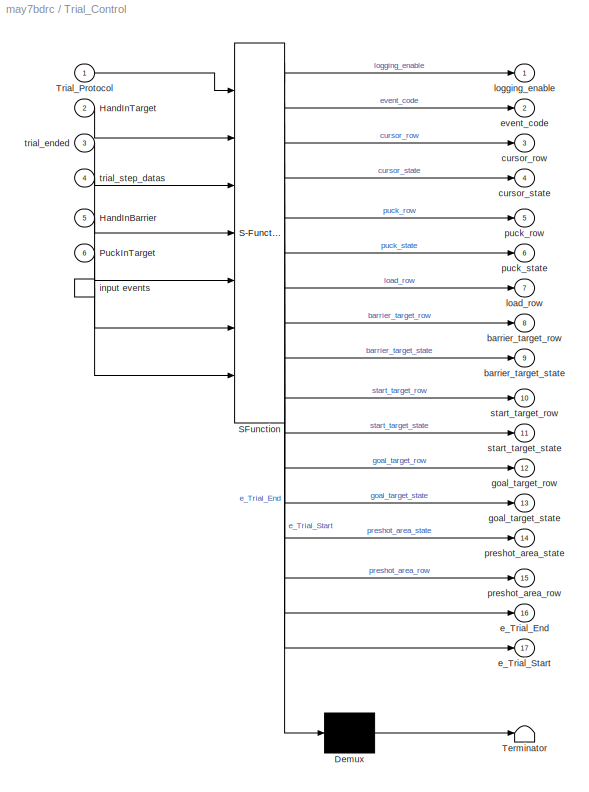
BLOCK [SubSystem] Trial_Control
  ErrorFcn = Stateflow.Translate.translate
  PermitHierarchicalResolution = ParametersOnly
  Ports = [6, 17, 0, 1]
  RequestExecContextInheritance = off
  SFBlockType = Chart
  SID = 218
  TreatAsAtomicUnit = on
BLOCK [Demux] Trial_Control/ Demux 
  Outputs = 1
  Ports = [1, 1]
  SID = 218::90
BLOCK [S-Function] Trial_Control/ SFunction 
  EnableBusSupport = on
  FunctionName = sf_sfun
  PortCounts = [7 18]
  Ports = [7, 18]
  SFunctionDeploymentMode = off
  SID = 218::89
  Tag = Stateflow S-Function may7bdrc 3
BLOCK [Terminator] Trial_Control/ Terminator 
  SID = 218::101
BLOCK [Inport] Trial_Control/HandInBarrier
  IconDisplay = Port number
  Port = 5
  SID = 218::97
BLOCK [Inport] Trial_Control/HandInTarget
  IconDisplay = Port number
  Port = 2
  SID = 218::78
BLOCK [Inport] Trial_Control/PuckInTarget
  IconDisplay = Port number
  Port = 6
  SID = 218::98
BLOCK [Inport] Trial_Control/Trial_Protocol
  IconDisplay = Port number
  SID = 218::65
BLOCK [Outport] Trial_Control/barrier_target_row
  IconDisplay = Port number
  Port = 8
  SID = 218::71
BLOCK [Outport] Trial_Control/barrier_target_state
  IconDisplay = Port number
  Port = 9
  SID = 218::72
BLOCK [Outport] Trial_Control/cursor_row
  IconDisplay = Port number
  Port = 3
  SID = 218::60
BLOCK [Outport] Trial_Control/cursor_state
  IconDisplay = Port number
  Port = 4
  SID = 218::62
BLOCK [Outport] Trial_Control/e_Trial_End
  IconDisplay = Port number
  Port = 16
  SID = 218::96
BLOCK [Outport] Trial_Control/e_Trial_Start
  IconDisplay = Port number
  Port = 17
  SID = 218::99
BLOCK [Outport] Trial_Control/event_code
  IconDisplay = Port number
  Port = 2
  SID = 218::47
BLOCK [Outport] Trial_Control/goal_target_row
  IconDisplay = Port number
  Port = 12
  SID = 218::75
BLOCK [Outport] Trial_Control/goal_target_state
  IconDisplay = Port number
  Port = 13
  SID = 218::76
BLOCK [TriggerPort] Trial_Control/input events
  Ports = [0, 1]
  SID = 218::3
  ShowOutputPort = on
  TriggerType = either
BLOCK [Outport] Trial_Control/load_row
  IconDisplay = Port number
  Port = 7
  SID = 218::64
BLOCK [Outport] Trial_Control/logging_enable
  IconDisplay = Port number
  SID = 218::7
BLOCK [Outport] Trial_Control/preshot_area_row
  IconDisplay = Port number
  Port = 15
  SID = 218::94
BLOCK [Outport] Trial_Control/preshot_area_state
  IconDisplay = Port number
  Port = 14
  SID = 218::92
BLOCK [Outport] Trial_Control/puck_row
  IconDisplay = Port number
  Port = 5
  SID = 218::61
BLOCK [Outport] Trial_Control/puck_state
  IconDisplay = Port number
  Port = 6
  SID = 218::63
BLOCK [Outport] Trial_Control/start_target_row
  IconDisplay = Port number
  Port = 10
  SID = 218::73
BLOCK [Outport] Trial_Control/start_target_state
  IconDisplay = Port number
  Port = 11
  SID = 218::74
BLOCK [Inport] Trial_Control/trial_ended
  IconDisplay = Port number
  Port = 3
  SID = 218::86
BLOCK [Inport] Trial_Control/trial_step_datas
  IconDisplay = Port number
  Port = 4
  SID = 218::87
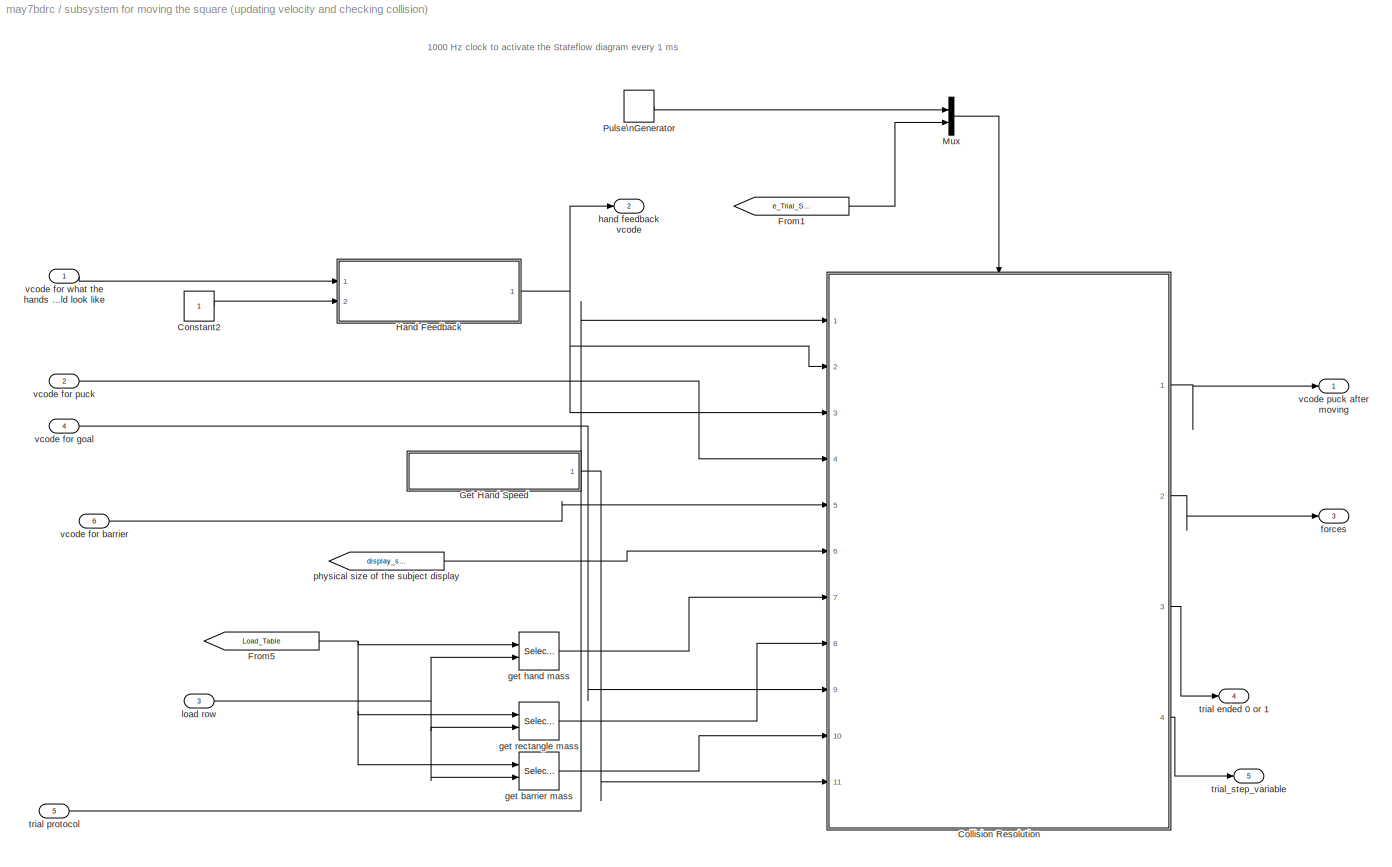
BLOCK [SubSystem] subsystem for moving the square (updating velocity and checking collision)
  Ports = [6, 5]
  RequestExecContextInheritance = off
  SID = 256
BLOCK [SubSystem] subsystem for moving the square (updating velocity and checking collision)/Collision Resolution
  ErrorFcn = Stateflow.Translate.translate
  PermitHierarchicalResolution = ParametersOnly
  Ports = [11, 4, 0, 1]
  RequestExecContextInheritance = off
  SFBlockType = Chart
  SID = 10
  TreatAsAtomicUnit = on
BLOCK [Demux] subsystem for moving the square (updating velocity and checking collision)/Collision Resolution/ Demux 
  Outputs = 1
  Ports = [1, 1]
  SID = 10::79
BLOCK [S-Function] subsystem for moving the square (updating velocity and checking collision)/Collision Resolution/ SFunction 
  EnableBusSupport = on
  FunctionName = sf_sfun
  PortCounts = [12 5]
  Ports = [12, 5]
  SFunctionDeploymentMode = off
  SID = 10::78
  Tag = Stateflow S-Function may7bdrc 1
BLOCK [Terminator] subsystem for moving the square (updating velocity and checking collision)/Collision Resolution/ Terminator 
  SID = 10::80
BLOCK [Inport] subsystem for moving the square (updating velocity and checking collision)/Collision Resolution/barrier_target
  IconDisplay = Port number
  Port = 5
  SID = 10::83
BLOCK [Inport] subsystem for moving the square (updating velocity and checking collision)/Collision Resolution/circ_target
  IconDisplay = Port number
  Port = 2
  SID = 10::1
BLOCK [Inport] subsystem for moving the square (updating velocity and checking collision)/Collision Resolution/circ_to_barrier_target
  IconDisplay = Port number
  Port = 3
  SID = 10::91
BLOCK [Inport] subsystem for moving the square (updating velocity and checking collision)/Collision Resolution/display_size
  IconDisplay = Port number
  Port = 6
  SID = 10::39
BLOCK [Outport] subsystem for moving the square (updating velocity and checking collision)/Collision Resolution/force_scaling
  IconDisplay = Port number
  Port = 2
  SID = 10::48
BLOCK [Inport] subsystem for moving the square (updating velocity and checking collision)/Collision Resolution/goal_target
  IconDisplay = Port number
  Port = 9
  SID = 10::65
BLOCK [Inport] subsystem for moving the square (updating velocity and checking collision)/Collision Resolution/hand_speed
  IconDisplay = Port number
  Port = 11
  SID = 10::92
BLOCK [TriggerPort] subsystem for moving the square (updating velocity and checking collision)/Collision Resolution/input events
  Ports = [0, 1]
  SID = 10::3
  ShowOutputPort = on
  TriggerType = either
BLOCK [Inport] subsystem for moving the square (updating velocity and checking collision)/Collision Resolution/mb
  IconDisplay = Port number
  Port = 10
  SID = 10::84
BLOCK [Inport] subsystem for moving the square (updating velocity and checking collision)/Collision Resolution/mc
  IconDisplay = Port number
  Port = 7
  SID = 10::56
BLOCK [Inport] subsystem for moving the square (updating velocity and checking collision)/Collision Resolution/mr
  IconDisplay = Port number
  Port = 8
  SID = 10::57
BLOCK [Inport] subsystem for moving the square (updating velocity and checking collision)/Collision Resolution/rect_target
  IconDisplay = Port number
  Port = 4
  SID = 10::36
BLOCK [Outport] subsystem for moving the square (updating velocity and checking collision)/Collision Resolution/rect_target_out
  IconDisplay = Port number
  SID = 10::33
BLOCK [Inport] subsystem for moving the square (updating velocity and checking collision)/Collision Resolution/trial_protocol
  IconDisplay = Port number
  SID = 10::69
BLOCK [Outport] subsystem for moving the square (updating velocity and checking collision)/Collision Resolution/trial_step
  IconDisplay = Port number
  Port = 4
  SID = 10::76
BLOCK [Outport] subsystem for moving the square (updating velocity and checking collision)/Collision Resolution/trial_stop
  IconDisplay = Port number
  Port = 3
  SID = 10::64
BLOCK [Constant] subsystem for moving the square (updating velocity and checking collision)/Constant2
  SID = 236
BLOCK [From] subsystem for moving the square (updating velocity and checking collision)/From1
  GotoTag = e_Trial_Start
  SID = 336
BLOCK [From] subsystem for moving the square (updating velocity and checking collision)/From5
  GotoTag = Load_Table
  SID = 176
  TagVisibility = global
BLOCK [SubSystem] subsystem for moving the square (updating velocity and checking collision)/Get Hand Speed
  Ports = [0, 1]
  RequestExecContextInheritance = off
  SID = 219
BLOCK [BusSelector] subsystem for moving the square (updating velocity and checking collision)/Get Hand Speed/Bus\nSelector1
  OutputSignals = Robot1.a1_hand_velocities,Robot2.a2_hand_velocities,KINDataGeneral.active_arm
  Ports = [1, 3]
  SID = 79
BLOCK [From] subsystem for moving the square (updating velocity and checking collision)/Get Hand Speed/From4
  GotoTag = KINdata_bus
  SID = 78
  TagVisibility = global
BLOCK [Goto] subsystem for moving the square (updating velocity and checking collision)/Get Hand Speed/Goto2
  GotoTag = arm
  SID = 143
BLOCK [Outport] subsystem for moving the square (updating velocity and checking collision)/Get Hand Speed/Hand Speeds for Both Arms
  IconDisplay = Port number
  SID = 220
BLOCK [Concatenate] subsystem for moving the square (updating velocity and checking collision)/Get Hand Speed/Matrix\nConcatenate1
  Mode = Multidimensional array
  Ports = [2, 1]
  SID = 131
BLOCK [SubSystem] subsystem for moving the square (updating velocity and checking collision)/Hand Feedback
  Ports = [2, 1]
  RequestExecContextInheritance = off
  SID = 146
BLOCK [SubSystem] subsystem for moving the square (updating velocity and checking collision)/Hand Feedback/Hand_Feedback
  AncestorBlock = KINARM_general/Hand_Feedback
  Ports = [2, 1]
  RequestExecContextInheritance = off
  SID = 77
BLOCK [Inport] subsystem for moving the square (updating velocity and checking collision)/Hand Feedback/Hand_Feedback/Assess_arm_VCODE
  IconDisplay = Port number
  SID = 77:116
BLOCK [Inport] subsystem for moving the square (updating velocity and checking collision)/Hand Feedback/Hand_Feedback/Contralateral_arm_VCODE
  IconDisplay = Port number
  Port = 2
  SID = 77:117
BLOCK [SubSystem] subsystem for moving the square (updating velocity and checking collision)/Hand Feedback/Hand_Feedback/FeedFwdArm
  ErrorFcn = Stateflow.Translate.translate
  PermitHierarchicalResolution = ParametersOnly
  Ports = [4, 1]
  RTWFileNameOpts = Use function name
  RTWSystemCode = Nonreusable function
  RequestExecContextInheritance = off
  SFBlockType = MATLAB Function
  SID = 77:2
  TreatAsAtomicUnit = on
BLOCK [Demux] subsystem for moving the square (updating velocity and checking collision)/Hand Feedback/Hand_Feedback/FeedFwdArm/ Demux 
  Outputs = 1
  Ports = [1, 1]
  SID = 77:2::83
BLOCK [S-Function] subsystem for moving the square (updating velocity and checking collision)/Hand Feedback/Hand_Feedback/FeedFwdArm/ SFunction 
  EnableBusSupport = on
  FunctionName = sf_sfun
  PortCounts = [4 2]
  Ports = [4, 2]
  SFunctionDeploymentMode = off
  SID = 77:2::82
  Tag = Stateflow S-Function may7bdrc 4
BLOCK [Terminator] subsystem for moving the square (updating velocity and checking collision)/Hand Feedback/Hand_Feedback/FeedFwdArm/ Terminator 
  SID = 77:2::84
BLOCK [Inport] subsystem for moving the square (updating velocity and checking collision)/Hand Feedback/Hand_Feedback/FeedFwdArm/KINARMdata
  IconDisplay = Port number
  SID = 77:2::1
BLOCK [Inport] subsystem for moving the square (updating velocity and checking collision)/Hand Feedback/Hand_Feedback/FeedFwdArm/VCODES_in
  IconDisplay = Port number
  Port = 2
  SID = 77:2::2
BLOCK [Outport] subsystem for moving the square (updating velocity and checking collision)/Hand Feedback/Hand_Feedback/FeedFwdArm/VCODES_out
  IconDisplay = Port number
  SID = 77:2::8
BLOCK [Inport] subsystem for moving the square (updating velocity and checking collision)/Hand Feedback/Hand_Feedback/FeedFwdArm/block_settings
  IconDisplay = Port number
  Port = 4
  SID = 77:2::4
BLOCK [Inport] subsystem for moving the square (updating velocity and checking collision)/Hand Feedback/Hand_Feedback/FeedFwdArm/fdbk_stts_mdl
  IconDisplay = Port number
  Port = 3
  SID = 77:2::3
BLOCK [From] subsystem for moving the square (updating velocity and checking collision)/Hand Feedback/Hand_Feedback/From1
  CloseFcn = tagdialog Close
  GotoTag = KINdata
  SID = 77:3
  TagVisibility = global
BLOCK [Concatenate] subsystem for moving the square (updating velocity and checking collision)/Hand Feedback/Hand_Feedback/Matrix\nConcatenation
  Mode = Multidimensional array
  Ports = [2, 1]
  SID = 77:4
BLOCK [Reshape] subsystem for moving the square (updating velocity and checking collision)/Hand Feedback/Hand_Feedback/Reshape
  OutputDimensionality = Row vector (2-D)
  Ports = [1, 1]
  SID = 77:5
BLOCK [Reshape] subsystem for moving the square (updating velocity and checking collision)/Hand Feedback/Hand_Feedback/Reshape1
  OutputDimensionality = Row vector (2-D)
  Ports = [1, 1]
  SID = 77:6
BLOCK [Outport] subsystem for moving the square (updating velocity and checking collision)/Hand Feedback/Hand_Feedback/VCODE
  IconDisplay = Port number
  SID = 77:10
BLOCK [Constant] subsystem for moving the square (updating velocity and checking collision)/Hand Feedback/Hand_Feedback/block_settings
  SID = 77:7
  Value = feedback_cntl_src
BLOCK [Constant] subsystem for moving the square (updating velocity and checking collision)/Hand Feedback/Hand_Feedback/feedback_status
  SID = 77:34
BLOCK [SubSystem] subsystem for moving the square (updating velocity and checking collision)/Hand Feedback/MATLAB Function
  ErrorFcn = Stateflow.Translate.translate
  PermitHierarchicalResolution = ParametersOnly
  Ports = [2, 1]
  RequestExecContextInheritance = off
  SFBlockType = MATLAB Function
  SID = 145
  TreatAsAtomicUnit = on
BLOCK [Demux] subsystem for moving the square (updating velocity and checking collision)/Hand Feedback/MATLAB Function/ Demux 
  Outputs = 1
  Ports = [1, 1]
  SID = 145::27
BLOCK [S-Function] subsystem for moving the square (updating velocity and checking collision)/Hand Feedback/MATLAB Function/ SFunction 
  EnableBusSupport = on
  FunctionName = sf_sfun
  PortCounts = [2 2]
  Ports = [2, 2]
  SFunctionDeploymentMode = off
  SID = 145::26
  Tag = Stateflow S-Function may7bdrc 2
BLOCK [Terminator] subsystem for moving the square (updating velocity and checking collision)/Hand Feedback/MATLAB Function/ Terminator 
  SID = 145::28
BLOCK [Inport] subsystem for moving the square (updating velocity and checking collision)/Hand Feedback/MATLAB Function/arm_to_be_assessed
  IconDisplay = Port number
  Port = 2
  SID = 145::1
BLOCK [Inport] subsystem for moving the square (updating velocity and checking collision)/Hand Feedback/MATLAB Function/feedback_vcodes
  IconDisplay = Port number
  SID = 145::19
BLOCK [Outport] subsystem for moving the square (updating velocity and checking collision)/Hand Feedback/MATLAB Function/hand_vcodes
  IconDisplay = Port number
  SID = 145::5
BLOCK [Inport] subsystem for moving the square (updating velocity and checking collision)/Hand Feedback/arm
  IconDisplay = Port number
  Port = 2
  SID = 151
BLOCK [Outport] subsystem for moving the square (updating velocity and checking collision)/Hand Feedback/hand feedback
  IconDisplay = Port number
  SID = 148
BLOCK [Inport] subsystem for moving the square (updating velocity and checking collision)/Hand Feedback/template vcodes
  IconDisplay = Port number
  SID = 147
BLOCK [Mux] subsystem for moving the square (updating velocity and checking collision)/Mux
  DisplayOption = bar
  Inputs = 2
  Ports = [2, 1]
  SID = 337
BLOCK [DiscretePulseGenerator] subsystem for moving the square (updating velocity and checking collision)/Pulse\nGenerator
  Period = 1/1000
  Ports = [0, 1]
  PulseType = Time based
  PulseWidth = 50
  SID = 244
BLOCK [Outport] subsystem for moving the square (updating velocity and checking collision)/forces
  IconDisplay = Port number
  Port = 3
  SID = 261
BLOCK [Selector] subsystem for moving the square (updating velocity and checking collision)/get barrier mass
  IndexOptions = Index vector (port),Index vector (dialog)
  Indices = MASS_RECT,MASS_RECT
  NumberOfDimensions = 2
  OutputSizes = 1,1
  Ports = [2, 1]
  SID = 317
BLOCK [Selector] subsystem for moving the square (updating velocity and checking collision)/get hand mass
  IndexOptions = Index vector (port),Index vector (dialog)
  Indices = MASS_CIRCLE,MASS_CIRCLE
  NumberOfDimensions = 2
  OutputSizes = 1,1
  Ports = [2, 1]
  SID = 177
BLOCK [Selector] subsystem for moving the square (updating velocity and checking collision)/get rectangle mass
  IndexOptions = Index vector (port),Index vector (dialog)
  Indices = MASS_RECT,MASS_RECT
  NumberOfDimensions = 2
  OutputSizes = 1,1
  Ports = [2, 1]
  SID = 178
BLOCK [Outport] subsystem for moving the square (updating velocity and checking collision)/hand feedback vcode
  IconDisplay = Port number
  Port = 2
  SID = 262
BLOCK [Inport] subsystem for moving the square (updating velocity and checking collision)/load row
  IconDisplay = Port number
  Port = 3
  SID = 274
BLOCK [From] subsystem for moving the square (updating velocity and checking collision)/physical size of the subject display
  GotoTag = display_size_m
  SID = 86
  TagVisibility = global
BLOCK [Outport] subsystem for moving the square (updating velocity and checking collision)/trial ended 0 or 1
  IconDisplay = Port number
  OutDataTypeStr = double
  Port = 4
  PortDimensions = [1]
  SID = 280
BLOCK [Inport] subsystem for moving the square (updating velocity and checking collision)/trial protocol
  IconDisplay = Port number
  Port = 5
  SID = 290
BLOCK [Outport] subsystem for moving the square (updating velocity and checking collision)/trial_step_variable
  IconDisplay = Port number
  OutDataTypeStr = double
  Port = 5
  PortDimensions = [1]
  SID = 301
BLOCK [Inport] subsystem for moving the square (updating velocity and checking collision)/vcode for barrier
  IconDisplay = Port number
  Port = 6
  PortDimensions = [1 70]
  SID = 304
BLOCK [Inport] subsystem for moving the square (updating velocity and checking collision)/vcode for goal
  IconDisplay = Port number
  Port = 4
  PortDimensions = [1 70]
  SID = 283
BLOCK [Inport] subsystem for moving the square (updating velocity and checking collision)/vcode for puck
  IconDisplay = Port number
  LockScale = on
  Port = 2
  PortDimensions = [1 70]
  SID = 259
BLOCK [Inport] subsystem for moving the square (updating velocity and checking collision)/vcode for what the hands should look like
  IconDisplay = Port number
  PortDimensions = [1 70]
  SID = 257
BLOCK [Outport] subsystem for moving the square (updating velocity and checking collision)/vcode puck after moving
  IconDisplay = Port number
  SID = 260
ANNOTATION (root): These are the things that will be drawn
ANNOTATION KINARM_HandInBarrier: <copyright redacted>\nhttp://www.bkintechnologies.com/about-us/end-user-license-agreement/
ANNOTATION Subsystem: Creates the hand bump based on force scaling that comes from Collion Resolution\n\nThe basics here are:\n-when force scaling changes from 0, a perturbation begins.\n-the memory3 function holds the value of force_scaling at that moment until the perturbation is done\n-the hand bump has a force value of: FORCE_MULTIPLIER * (force_scaling .* perturbation) N\n-FORCE_MULTIPLIER is a fudge factor coming...<+78ch>
ANNOTATION Subsystem/Perturbation: <copyright redacted>\nhttp://www.bkintechnologies.com/about-us/end-user-license-agreement/
ANNOTATION subsystem for moving the square (updating velocity and checking collision): 1000 Hz clock to activate the Stateflow diagram every 1 ms
ANNOTATION subsystem for moving the square (updating velocity and checking collision)/Hand Feedback/Hand_Feedback: KV - disabling feed forward
ANNOTATION subsystem for moving the square (updating velocity and checking collision)/Hand Feedback/Hand_Feedback: This Sub-Block creates the Hand Feedback VCODEs for drawing hand feedback
ANNOTATION subsystem for moving the square (updating velocity and checking collision)/Hand Feedback/Hand_Feedback: <copyright redacted>\nhttp://www.bkintechnologies.com/about-us/end-user-license-agreement/
LINE Forces_to_Torques:1 -> KINARM_Exo_Apply_Loads:1
LINE From14:1 -> Subsystem:1
LINE From1:1 -> subsystem for moving the square (updating velocity and checking collision):3
LINE From2:1 -> Subsystem:2
LINE From3:1 -> Matrix\nConcatenate:6
LINE From4:1 -> Matrix\nConcatenate:5
LINE From5:1 -> Matrix\nConcatenate:1
LINE From6:1 -> Matrix\nConcatenate:3
LINE From7:1 -> Matrix\nConcatenate:4
LINE From8:1 -> Matrix\nConcatenate:2
LINE From9:1 -> Memory2:1
LINE From:1 -> Subsystem:3
LINE GUI Control:1 -> Trial_Control:trigger
NET GUI Control:2 -> Trial_Control:1, subsystem for moving the square (updating velocity and checking collision):5
LINE KINARM_HandInBarrier/Array Selector:1 -> KINARM_HandInBarrier/HandInTarget_Vector:1
LINE KINARM_HandInBarrier/Bus\nSelector:1 -> KINARM_HandInBarrier/Switch:1
LINE KINARM_HandInBarrier/Bus\nSelector:2 -> KINARM_HandInBarrier/Switch:3
LINE KINARM_HandInBarrier/Embedded\nMATLAB InsideTarget/ Demux :1 -> KINARM_HandInBarrier/Embedded\nMATLAB InsideTarget/ Terminator :1
LINE KINARM_HandInBarrier/Embedded\nMATLAB InsideTarget/ SFunction :1 -> KINARM_HandInBarrier/Embedded\nMATLAB InsideTarget/ Demux :1
LINE KINARM_HandInBarrier/Embedded\nMATLAB InsideTarget/ SFunction :2 -> KINARM_HandInBarrier/Embedded\nMATLAB InsideTarget/intarget:1
LINE KINARM_HandInBarrier/Embedded\nMATLAB InsideTarget/Target_Table:1 -> KINARM_HandInBarrier/Embedded\nMATLAB InsideTarget/ SFunction :5
LINE KINARM_HandInBarrier/Embedded\nMATLAB InsideTarget/attribcol:1 -> KINARM_HandInBarrier/Embedded\nMATLAB InsideTarget/ SFunction :3
LINE KINARM_HandInBarrier/Embedded\nMATLAB InsideTarget/handpos:1 -> KINARM_HandInBarrier/Embedded\nMATLAB InsideTarget/ SFunction :1
LINE KINARM_HandInBarrier/Embedded\nMATLAB InsideTarget/num_targets:1 -> KINARM_HandInBarrier/Embedded\nMATLAB InsideTarget/ SFunction :4
LINE KINARM_HandInBarrier/Embedded\nMATLAB InsideTarget/target_type:1 -> KINARM_HandInBarrier/Embedded\nMATLAB InsideTarget/ SFunction :2
LINE KINARM_HandInBarrier/Embedded\nMATLAB InsideTarget:1 -> KINARM_HandInBarrier/Array Selector:1
LINE KINARM_HandInBarrier/From1:1 -> KINARM_HandInBarrier/Embedded\nMATLAB InsideTarget:5
LINE KINARM_HandInBarrier/Mux:1 -> KINARM_HandInBarrier/Embedded\nMATLAB InsideTarget:3
LINE KINARM_HandInBarrier/Selected States:1 -> KINARM_HandInBarrier/Array Selector:2
LINE KINARM_HandInBarrier/Switch:1 -> KINARM_HandInBarrier/Embedded\nMATLAB InsideTarget:1
LINE KINARM_HandInBarrier/Target_Type:1 -> KINARM_HandInBarrier/Embedded\nMATLAB InsideTarget:2
LINE KINARM_HandInBarrier/Use_Dominant_Hand?:1 -> KINARM_HandInBarrier/Switch:2
LINE KINARM_HandInBarrier/attribcol1:1 -> KINARM_HandInBarrier/Mux:1
LINE KINARM_HandInBarrier/attribcol2:1 -> KINARM_HandInBarrier/Mux:2
LINE KINARM_HandInBarrier/attribcol3:1 -> KINARM_HandInBarrier/Mux:3
LINE KINARM_HandInBarrier/attribcol4:1 -> KINARM_HandInBarrier/Mux:4
LINE KINARM_HandInBarrier/attribcol5:1 -> KINARM_HandInBarrier/Mux:5
LINE KINARM_HandInBarrier/kin data split/Bus\nCreator1:1 -> KINARM_HandInBarrier/kin data split/hand vel:1
LINE KINARM_HandInBarrier/kin data split/Bus\nCreator2:1 -> KINARM_HandInBarrier/kin data split/link_angles:1
LINE KINARM_HandInBarrier/kin data split/Bus\nCreator3:1 -> KINARM_HandInBarrier/kin data split/link_vel:1
LINE KINARM_HandInBarrier/kin data split/Bus\nCreator:1 -> KINARM_HandInBarrier/kin data split/hand pos:1
NET KINARM_HandInBarrier/kin data split/Bus\nSelector1:1 -> KINARM_HandInBarrier/kin data split/Switch2:1, KINARM_HandInBarrier/kin data split/Switch3:3
NET KINARM_HandInBarrier/kin data split/Bus\nSelector1:2 -> KINARM_HandInBarrier/kin data split/Switch2:2, KINARM_HandInBarrier/kin data split/Switch3:2
NET KINARM_HandInBarrier/kin data split/Bus\nSelector1:3 -> KINARM_HandInBarrier/kin data split/Switch2:3, KINARM_HandInBarrier/kin data split/Switch3:1
NET KINARM_HandInBarrier/kin data split/Bus\nSelector2:1 -> KINARM_HandInBarrier/kin data split/Switch4:1, KINARM_HandInBarrier/kin data split/Switch5:3
NET KINARM_HandInBarrier/kin data split/Bus\nSelector2:2 -> KINARM_HandInBarrier/kin data split/Switch4:2, KINARM_HandInBarrier/kin data split/Switch5:2
NET KINARM_HandInBarrier/kin data split/Bus\nSelector2:3 -> KINARM_HandInBarrier/kin data split/Switch4:3, KINARM_HandInBarrier/kin data split/Switch5:1
NET KINARM_HandInBarrier/kin data split/Bus\nSelector3:1 -> KINARM_HandInBarrier/kin data split/Switch6:1, KINARM_HandInBarrier/kin data split/Switch7:3
NET KINARM_HandInBarrier/kin data split/Bus\nSelector3:2 -> KINARM_HandInBarrier/kin data split/Switch6:2, KINARM_HandInBarrier/kin data split/Switch7:2
NET KINARM_HandInBarrier/kin data split/Bus\nSelector3:3 -> KINARM_HandInBarrier/kin data split/Switch6:3, KINARM_HandInBarrier/kin data split/Switch7:1
NET KINARM_HandInBarrier/kin data split/Bus\nSelector:1 -> KINARM_HandInBarrier/kin data split/Switch1:3, KINARM_HandInBarrier/kin data split/Switch:1
NET KINARM_HandInBarrier/kin data split/Bus\nSelector:2 -> KINARM_HandInBarrier/kin data split/Switch1:2, KINARM_HandInBarrier/kin data split/Switch:2
NET KINARM_HandInBarrier/kin data split/Bus\nSelector:3 -> KINARM_HandInBarrier/kin data split/Switch1:1, KINARM_HandInBarrier/kin data split/Switch:3
NET KINARM_HandInBarrier/kin data split/From1:1 -> KINARM_HandInBarrier/kin data split/Bus\nSelector1:1, KINARM_HandInBarrier/kin data split/Bus\nSelector2:1, KINARM_HandInBarrier/kin data split/Bus\nSelector3:1, KINARM_HandInBarrier/kin data split/Bus\nSelector:1
LINE KINARM_HandInBarrier/kin data split/Switch1:1 -> KINARM_HandInBarrier/kin data split/Bus\nCreator:2
LINE KINARM_HandInBarrier/kin data split/Switch2:1 -> KINARM_HandInBarrier/kin data split/Bus\nCreator1:1
LINE KINARM_HandInBarrier/kin data split/Switch3:1 -> KINARM_HandInBarrier/kin data split/Bus\nCreator1:2
LINE KINARM_HandInBarrier/kin data split/Switch4:1 -> KINARM_HandInBarrier/kin data split/Bus\nCreator2:1
LINE KINARM_HandInBarrier/kin data split/Switch5:1 -> KINARM_HandInBarrier/kin data split/Bus\nCreator2:2
LINE KINARM_HandInBarrier/kin data split/Switch6:1 -> KINARM_HandInBarrier/kin data split/Bus\nCreator3:1
LINE KINARM_HandInBarrier/kin data split/Switch7:1 -> KINARM_HandInBarrier/kin data split/Bus\nCreator3:2
LINE KINARM_HandInBarrier/kin data split/Switch:1 -> KINARM_HandInBarrier/kin data split/Bus\nCreator:1
LINE KINARM_HandInBarrier/kin data split:1 -> KINARM_HandInBarrier/Bus\nSelector:1
LINE KINARM_HandInBarrier/kin data split:2 -> KINARM_HandInBarrier/Terminator:1
LINE KINARM_HandInBarrier/kin data split:3 -> KINARM_HandInBarrier/Terminator1:1
LINE KINARM_HandInBarrier/num_states:1 -> KINARM_HandInBarrier/Embedded\nMATLAB InsideTarget:4
LINE KINARM_HandInBarrier:1 -> Trial_Control:5
LINE KINARM_HandInTarget:1 -> Trial_Control:2
LINE Matrix\nConcatenate:1 -> Process_Video_CMD:1
LINE Memory1:1 -> Trial_Control:4
LINE Memory2:1 -> PuckInTarget:1
LINE Memory:1 -> Trial_Control:3
LINE PuckInTarget/Array Selector:1 -> PuckInTarget/HandInTarget_Vector:1
LINE PuckInTarget/Embedded\nMATLAB InsideTarget/ Demux :1 -> PuckInTarget/Embedded\nMATLAB InsideTarget/ Terminator :1
LINE PuckInTarget/Embedded\nMATLAB InsideTarget/ SFunction :1 -> PuckInTarget/Embedded\nMATLAB InsideTarget/ Demux :1
LINE PuckInTarget/Embedded\nMATLAB InsideTarget/ SFunction :2 -> PuckInTarget/Embedded\nMATLAB InsideTarget/intarget:1
LINE PuckInTarget/Embedded\nMATLAB InsideTarget/Target_Table:1 -> PuckInTarget/Embedded\nMATLAB InsideTarget/ SFunction :5
LINE PuckInTarget/Embedded\nMATLAB InsideTarget/attribcol:1 -> PuckInTarget/Embedded\nMATLAB InsideTarget/ SFunction :3
LINE PuckInTarget/Embedded\nMATLAB InsideTarget/handpos:1 -> PuckInTarget/Embedded\nMATLAB InsideTarget/ SFunction :1
LINE PuckInTarget/Embedded\nMATLAB InsideTarget/num_targets:1 -> PuckInTarget/Embedded\nMATLAB InsideTarget/ SFunction :4
LINE PuckInTarget/Embedded\nMATLAB InsideTarget/target_type:1 -> PuckInTarget/Embedded\nMATLAB InsideTarget/ SFunction :2
LINE PuckInTarget/Embedded\nMATLAB InsideTarget:1 -> PuckInTarget/Array Selector:1
LINE PuckInTarget/From1:1 -> PuckInTarget/Embedded\nMATLAB InsideTarget:5
LINE PuckInTarget/Mux:1 -> PuckInTarget/Embedded\nMATLAB InsideTarget:3
LINE PuckInTarget/Selected States:1 -> PuckInTarget/Array Selector:2
LINE PuckInTarget/Selector:1 -> PuckInTarget/Embedded\nMATLAB InsideTarget:1
LINE PuckInTarget/Target_Type:1 -> PuckInTarget/Embedded\nMATLAB InsideTarget:2
LINE PuckInTarget/attribcol1:1 -> PuckInTarget/Mux:1
LINE PuckInTarget/attribcol2:1 -> PuckInTarget/Mux:2
LINE PuckInTarget/attribcol3:1 -> PuckInTarget/Mux:3
LINE PuckInTarget/attribcol4:1 -> PuckInTarget/Mux:4
LINE PuckInTarget/attribcol5:1 -> PuckInTarget/Mux:5
LINE PuckInTarget/num_states:1 -> PuckInTarget/Embedded\nMATLAB InsideTarget:4
LINE PuckInTarget/puck_vcode:1 -> PuckInTarget/Selector:1
LINE PuckInTarget:1 -> Trial_Control:6
NET Show_Barrier_Rectanle:1 -> Goto6:1, subsystem for moving the square (updating velocity and checking collision):6
NET Show_Goal_Rectangle:1 -> Goto8:1, subsystem for moving the square (updating velocity and checking collision):4
LINE Show_Hands:1 -> subsystem for moving the square (updating velocity and checking collision):1
LINE Show_Preshot_Area_Circle:1 -> Goto9:1
LINE Show_Puck_Rectangle:1 -> subsystem for moving the square (updating velocity and checking collision):2
LINE Show_Start_Circle:1 -> Goto7:1
LINE Subsystem/Abs:1 -> Subsystem/Sum of\nElements:1
LINE Subsystem/Compare\nTo Zero1:1 -> Subsystem/Perturbation:2
LINE Subsystem/Load Row:1 -> Subsystem/Perturbation:1
LINE Subsystem/Memory3:1 -> Subsystem/Switch:1
LINE Subsystem/Perturbation/Data Type Conversion2:1 -> Subsystem/Perturbation/Mux:1
LINE Subsystem/Perturbation/Data Type Conversion:1 -> Subsystem/Perturbation/Select Perturbation Times:1
LINE Subsystem/Perturbation/Demux:1 -> Subsystem/Perturbation/Ramp_up_down:1
LINE Subsystem/Perturbation/Demux:2 -> Subsystem/Perturbation/Ramp_up_down:2
LINE Subsystem/Perturbation/Demux:3 -> Subsystem/Perturbation/Ramp_up_down:3
LINE Subsystem/Perturbation/From2:1 -> Subsystem/Perturbation/Data Type Conversion:1
LINE Subsystem/Perturbation/From:1 -> Subsystem/Perturbation/Data Type Conversion2:1
LINE Subsystem/Perturbation/Load Row:1 -> Subsystem/Perturbation/Select Perturbation Times:2
LINE Subsystem/Perturbation/Mux:1 -> Subsystem/Perturbation/Ramp_up_down:trigger
LINE Subsystem/Perturbation/Ramp_up_down/ Demux :1 -> Subsystem/Perturbation/Ramp_up_down/ Terminator :1
LINE Subsystem/Perturbation/Ramp_up_down/ SFunction :1 -> Subsystem/Perturbation/Ramp_up_down/ Demux :1
LINE Subsystem/Perturbation/Ramp_up_down/ SFunction :2 -> Subsystem/Perturbation/Ramp_up_down/scaling:1
LINE Subsystem/Perturbation/Ramp_up_down/ input events :1 -> Subsystem/Perturbation/Ramp_up_down/ SFunction :4
LINE Subsystem/Perturbation/Ramp_up_down/duration:1 -> Subsystem/Perturbation/Ramp_up_down/ SFunction :2
LINE Subsystem/Perturbation/Ramp_up_down/ramp_down:1 -> Subsystem/Perturbation/Ramp_up_down/ SFunction :3
LINE Subsystem/Perturbation/Ramp_up_down/ramp_up:1 -> Subsystem/Perturbation/Ramp_up_down/ SFunction :1
LINE Subsystem/Perturbation/Ramp_up_down:1 -> Subsystem/Perturbation/Scaling:1
LINE Subsystem/Perturbation/Select Perturbation Times/ Demux :1 -> Subsystem/Perturbation/Select Perturbation Times/ Terminator :1
LINE Subsystem/Perturbation/Select Perturbation Times/ SFunction :1 -> Subsystem/Perturbation/Select Perturbation Times/ Demux :1
LINE Subsystem/Perturbation/Select Perturbation Times/ SFunction :2 -> Subsystem/Perturbation/Select Perturbation Times/perturbation:1
LINE Subsystem/Perturbation/Select Perturbation Times/load_cols:1 -> Subsystem/Perturbation/Select Perturbation Times/ SFunction :3
LINE Subsystem/Perturbation/Select Perturbation Times/load_row:1 -> Subsystem/Perturbation/Select Perturbation Times/ SFunction :2
LINE Subsystem/Perturbation/Select Perturbation Times/load_table:1 -> Subsystem/Perturbation/Select Perturbation Times/ SFunction :1
LINE Subsystem/Perturbation/Select Perturbation Times:1 -> Subsystem/Perturbation/Demux:1
LINE Subsystem/Perturbation/e_Reset:1 -> Subsystem/Perturbation/Mux:3
LINE Subsystem/Perturbation/e_Trigger:1 -> Subsystem/Perturbation/Mux:2
LINE Subsystem/Perturbation/load_table_column_indices:1 -> Subsystem/Perturbation/Select Perturbation Times:3
NET Subsystem/Perturbation:1 -> Subsystem/Product:3, Subsystem/Switch:2
LINE Subsystem/Product:1 -> Subsystem/forces (N):1
LINE Subsystem/Sum of\nElements:1 -> Subsystem/Compare\nTo Zero1:1
NET Subsystem/Switch:1 -> Subsystem/Memory3:1, Subsystem/Product:2, Subsystem/Scope 1:1
LINE Subsystem/Task Wide Parameters:1 -> Subsystem/get fudge factor:1
NET Subsystem/forces scaling:1 -> Subsystem/Abs:1, Subsystem/Switch:3
LINE Subsystem/get fudge factor:1 -> Subsystem/Product:1
NET Subsystem:1 -> Forces_to_Torques:1, KINARM_EP_Apply_Loads:1
LINE Trial_Control/ Demux :1 -> Trial_Control/ Terminator :1
LINE Trial_Control/ SFunction :1 -> Trial_Control/ Demux :1
LINE Trial_Control/ SFunction :10 -> Trial_Control/barrier_target_state:1
LINE Trial_Control/ SFunction :11 -> Trial_Control/start_target_row:1
LINE Trial_Control/ SFunction :12 -> Trial_Control/start_target_state:1
LINE Trial_Control/ SFunction :13 -> Trial_Control/goal_target_row:1
LINE Trial_Control/ SFunction :14 -> Trial_Control/goal_target_state:1
LINE Trial_Control/ SFunction :15 -> Trial_Control/preshot_area_state:1
LINE Trial_Control/ SFunction :16 -> Trial_Control/preshot_area_row:1
LINE Trial_Control/ SFunction :17 -> Trial_Control/e_Trial_End:1
LINE Trial_Control/ SFunction :18 -> Trial_Control/e_Trial_Start:1
LINE Trial_Control/ SFunction :2 -> Trial_Control/logging_enable:1
LINE Trial_Control/ SFunction :3 -> Trial_Control/event_code:1
LINE Trial_Control/ SFunction :4 -> Trial_Control/cursor_row:1
LINE Trial_Control/ SFunction :5 -> Trial_Control/cursor_state:1
LINE Trial_Control/ SFunction :6 -> Trial_Control/puck_row:1
LINE Trial_Control/ SFunction :7 -> Trial_Control/puck_state:1
LINE Trial_Control/ SFunction :8 -> Trial_Control/load_row:1
LINE Trial_Control/ SFunction :9 -> Trial_Control/barrier_target_row:1
LINE Trial_Control/HandInBarrier:1 -> Trial_Control/ SFunction :5
LINE Trial_Control/HandInTarget:1 -> Trial_Control/ SFunction :2
LINE Trial_Control/PuckInTarget:1 -> Trial_Control/ SFunction :6
LINE Trial_Control/Trial_Protocol:1 -> Trial_Control/ SFunction :1
LINE Trial_Control/input events:1 -> Trial_Control/ SFunction :7
LINE Trial_Control/trial_ended:1 -> Trial_Control/ SFunction :3
LINE Trial_Control/trial_step_datas:1 -> Trial_Control/ SFunction :4
LINE Trial_Control:1 -> DataLogging:1
LINE Trial_Control:10 -> Show_Start_Circle:1
LINE Trial_Control:11 -> Show_Start_Circle:2
LINE Trial_Control:12 -> Show_Goal_Rectangle:1
LINE Trial_Control:13 -> Show_Goal_Rectangle:2
LINE Trial_Control:14 -> Show_Preshot_Area_Circle:2
LINE Trial_Control:15 -> Show_Preshot_Area_Circle:1
LINE Trial_Control:16 -> GUI Control:1
LINE Trial_Control:17 -> Goto4:1
LINE Trial_Control:2 -> DataLogging:2
LINE Trial_Control:3 -> Show_Hands:1
LINE Trial_Control:4 -> Show_Hands:2
LINE Trial_Control:5 -> Show_Puck_Rectangle:1
LINE Trial_Control:6 -> Show_Puck_Rectangle:2
LINE Trial_Control:7 -> Goto:1
LINE Trial_Control:8 -> Show_Barrier_Rectanle:1
LINE Trial_Control:9 -> Show_Barrier_Rectanle:2
LINE subsystem for moving the square (updating velocity and checking collision)/Collision Resolution/ Demux :1 -> subsystem for moving the square (updating velocity and checking collision)/Collision Resolution/ Terminator :1
LINE subsystem for moving the square (updating velocity and checking collision)/Collision Resolution/ SFunction :1 -> subsystem for moving the square (updating velocity and checking collision)/Collision Resolution/ Demux :1
LINE subsystem for moving the square (updating velocity and checking collision)/Collision Resolution/ SFunction :2 -> subsystem for moving the square (updating velocity and checking collision)/Collision Resolution/rect_target_out:1
LINE subsystem for moving the square (updating velocity and checking collision)/Collision Resolution/ SFunction :3 -> subsystem for moving the square (updating velocity and checking collision)/Collision Resolution/force_scaling:1
LINE subsystem for moving the square (updating velocity and checking collision)/Collision Resolution/ SFunction :4 -> subsystem for moving the square (updating velocity and checking collision)/Collision Resolution/trial_stop:1
LINE subsystem for moving the square (updating velocity and checking collision)/Collision Resolution/ SFunction :5 -> subsystem for moving the square (updating velocity and checking collision)/Collision Resolution/trial_step:1
LINE subsystem for moving the square (updating velocity and checking collision)/Collision Resolution/barrier_target:1 -> subsystem for moving the square (updating velocity and checking collision)/Collision Resolution/ SFunction :5
LINE subsystem for moving the square (updating velocity and checking collision)/Collision Resolution/circ_target:1 -> subsystem for moving the square (updating velocity and checking collision)/Collision Resolution/ SFunction :2
LINE subsystem for moving the square (updating velocity and checking collision)/Collision Resolution/circ_to_barrier_target:1 -> subsystem for moving the square (updating velocity and checking collision)/Collision Resolution/ SFunction :3
LINE subsystem for moving the square (updating velocity and checking collision)/Collision Resolution/display_size:1 -> subsystem for moving the square (updating velocity and checking collision)/Collision Resolution/ SFunction :6
LINE subsystem for moving the square (updating velocity and checking collision)/Collision Resolution/goal_target:1 -> subsystem for moving the square (updating velocity and checking collision)/Collision Resolution/ SFunction :9
LINE subsystem for moving the square (updating velocity and checking collision)/Collision Resolution/hand_speed:1 -> subsystem for moving the square (updating velocity and checking collision)/Collision Resolution/ SFunction :11
LINE subsystem for moving the square (updating velocity and checking collision)/Collision Resolution/input events:1 -> subsystem for moving the square (updating velocity and checking collision)/Collision Resolution/ SFunction :12
LINE subsystem for moving the square (updating velocity and checking collision)/Collision Resolution/mb:1 -> subsystem for moving the square (updating velocity and checking collision)/Collision Resolution/ SFunction :10
LINE subsystem for moving the square (updating velocity and checking collision)/Collision Resolution/mc:1 -> subsystem for moving the square (updating velocity and checking collision)/Collision Resolution/ SFunction :7
LINE subsystem for moving the square (updating velocity and checking collision)/Collision Resolution/mr:1 -> subsystem for moving the square (updating velocity and checking collision)/Collision Resolution/ SFunction :8
LINE subsystem for moving the square (updating velocity and checking collision)/Collision Resolution/rect_target:1 -> subsystem for moving the square (updating velocity and checking collision)/Collision Resolution/ SFunction :4
LINE subsystem for moving the square (updating velocity and checking collision)/Collision Resolution/trial_protocol:1 -> subsystem for moving the square (updating velocity and checking collision)/Collision Resolution/ SFunction :1
LINE subsystem for moving the square (updating velocity and checking collision)/Collision Resolution:1 -> subsystem for moving the square (updating velocity and checking collision)/vcode puck after moving:1
LINE subsystem for moving the square (updating velocity and checking collision)/Collision Resolution:2 -> subsystem for moving the square (updating velocity and checking collision)/forces:1
LINE subsystem for moving the square (updating velocity and checking collision)/Collision Resolution:3 -> subsystem for moving the square (updating velocity and checking collision)/trial ended 0 or 1:1
LINE subsystem for moving the square (updating velocity and checking collision)/Collision Resolution:4 -> subsystem for moving the square (updating velocity and checking collision)/trial_step_variable:1
LINE subsystem for moving the square (updating velocity and checking collision)/Constant2:1 -> subsystem for moving the square (updating velocity and checking collision)/Hand Feedback:2
LINE subsystem for moving the square (updating velocity and checking collision)/From1:1 -> subsystem for moving the square (updating velocity and checking collision)/Mux:2
NET subsystem for moving the square (updating velocity and checking collision)/From5:1 -> subsystem for moving the square (updating velocity and checking collision)/get barrier mass:1, subsystem for moving the square (updating velocity and checking collision)/get hand mass:1, subsystem for moving the square (updating velocity and checking collision)/get rectangle mass:1
LINE subsystem for moving the square (updating velocity and checking collision)/Get Hand Speed/Bus\nSelector1:1 -> subsystem for moving the square (updating velocity and checking collision)/Get Hand Speed/Matrix\nConcatenate1:1
LINE subsystem for moving the square (updating velocity and checking collision)/Get Hand Speed/Bus\nSelector1:2 -> subsystem for moving the square (updating velocity and checking collision)/Get Hand Speed/Matrix\nConcatenate1:2
LINE subsystem for moving the square (updating velocity and checking collision)/Get Hand Speed/Bus\nSelector1:3 -> subsystem for moving the square (updating velocity and checking collision)/Get Hand Speed/Goto2:1
LINE subsystem for moving the square (updating velocity and checking collision)/Get Hand Speed/From4:1 -> subsystem for moving the square (updating velocity and checking collision)/Get Hand Speed/Bus\nSelector1:1
LINE subsystem for moving the square (updating velocity and checking collision)/Get Hand Speed/Matrix\nConcatenate1:1 -> subsystem for moving the square (updating velocity and checking collision)/Get Hand Speed/Hand Speeds for Both Arms:1
LINE subsystem for moving the square (updating velocity and checking collision)/Get Hand Speed:1 -> subsystem for moving the square (updating velocity and checking collision)/Collision Resolution:11
LINE subsystem for moving the square (updating velocity and checking collision)/Hand Feedback/Hand_Feedback/Assess_arm_VCODE:1 -> subsystem for moving the square (updating velocity and checking collision)/Hand Feedback/Hand_Feedback/Reshape:1
LINE subsystem for moving the square (updating velocity and checking collision)/Hand Feedback/Hand_Feedback/Contralateral_arm_VCODE:1 -> subsystem for moving the square (updating velocity and checking collision)/Hand Feedback/Hand_Feedback/Reshape1:1
LINE subsystem for moving the square (updating velocity and checking collision)/Hand Feedback/Hand_Feedback/FeedFwdArm/ Demux :1 -> subsystem for moving the square (updating velocity and checking collision)/Hand Feedback/Hand_Feedback/FeedFwdArm/ Terminator :1
LINE subsystem for moving the square (updating velocity and checking collision)/Hand Feedback/Hand_Feedback/FeedFwdArm/ SFunction :1 -> subsystem for moving the square (updating velocity and checking collision)/Hand Feedback/Hand_Feedback/FeedFwdArm/ Demux :1
LINE subsystem for moving the square (updating velocity and checking collision)/Hand Feedback/Hand_Feedback/FeedFwdArm/ SFunction :2 -> subsystem for moving the square (updating velocity and checking collision)/Hand Feedback/Hand_Feedback/FeedFwdArm/VCODES_out:1
LINE subsystem for moving the square (updating velocity and checking collision)/Hand Feedback/Hand_Feedback/FeedFwdArm/KINARMdata:1 -> subsystem for moving the square (updating velocity and checking collision)/Hand Feedback/Hand_Feedback/FeedFwdArm/ SFunction :1
LINE subsystem for moving the square (updating velocity and checking collision)/Hand Feedback/Hand_Feedback/FeedFwdArm/VCODES_in:1 -> subsystem for moving the square (updating velocity and checking collision)/Hand Feedback/Hand_Feedback/FeedFwdArm/ SFunction :2
LINE subsystem for moving the square (updating velocity and checking collision)/Hand Feedback/Hand_Feedback/FeedFwdArm/block_settings:1 -> subsystem for moving the square (updating velocity and checking collision)/Hand Feedback/Hand_Feedback/FeedFwdArm/ SFunction :4
LINE subsystem for moving the square (updating velocity and checking collision)/Hand Feedback/Hand_Feedback/FeedFwdArm/fdbk_stts_mdl:1 -> subsystem for moving the square (updating velocity and checking collision)/Hand Feedback/Hand_Feedback/FeedFwdArm/ SFunction :3
LINE subsystem for moving the square (updating velocity and checking collision)/Hand Feedback/Hand_Feedback/FeedFwdArm:1 -> subsystem for moving the square (updating velocity and checking collision)/Hand Feedback/Hand_Feedback/VCODE:1
LINE subsystem for moving the square (updating velocity and checking collision)/Hand Feedback/Hand_Feedback/From1:1 -> subsystem for moving the square (updating velocity and checking collision)/Hand Feedback/Hand_Feedback/FeedFwdArm:1
LINE subsystem for moving the square (updating velocity and checking collision)/Hand Feedback/Hand_Feedback/Matrix\nConcatenation:1 -> subsystem for moving the square (updating velocity and checking collision)/Hand Feedback/Hand_Feedback/FeedFwdArm:2
LINE subsystem for moving the square (updating velocity and checking collision)/Hand Feedback/Hand_Feedback/Reshape1:1 -> subsystem for moving the square (updating velocity and checking collision)/Hand Feedback/Hand_Feedback/Matrix\nConcatenation:2
LINE subsystem for moving the square (updating velocity and checking collision)/Hand Feedback/Hand_Feedback/Reshape:1 -> subsystem for moving the square (updating velocity and checking collision)/Hand Feedback/Hand_Feedback/Matrix\nConcatenation:1
LINE subsystem for moving the square (updating velocity and checking collision)/Hand Feedback/Hand_Feedback/block_settings:1 -> subsystem for moving the square (updating velocity and checking collision)/Hand Feedback/Hand_Feedback/FeedFwdArm:4
LINE subsystem for moving the square (updating velocity and checking collision)/Hand Feedback/Hand_Feedback/feedback_status:1 -> subsystem for moving the square (updating velocity and checking collision)/Hand Feedback/Hand_Feedback/FeedFwdArm:3
LINE subsystem for moving the square (updating velocity and checking collision)/Hand Feedback/Hand_Feedback:1 -> subsystem for moving the square (updating velocity and checking collision)/Hand Feedback/MATLAB Function:1
LINE subsystem for moving the square (updating velocity and checking collision)/Hand Feedback/MATLAB Function/ Demux :1 -> subsystem for moving the square (updating velocity and checking collision)/Hand Feedback/MATLAB Function/ Terminator :1
LINE subsystem for moving the square (updating velocity and checking collision)/Hand Feedback/MATLAB Function/ SFunction :1 -> subsystem for moving the square (updating velocity and checking collision)/Hand Feedback/MATLAB Function/ Demux :1
LINE subsystem for moving the square (updating velocity and checking collision)/Hand Feedback/MATLAB Function/ SFunction :2 -> subsystem for moving the square (updating velocity and checking collision)/Hand Feedback/MATLAB Function/hand_vcodes:1
LINE subsystem for moving the square (updating velocity and checking collision)/Hand Feedback/MATLAB Function/arm_to_be_assessed:1 -> subsystem for moving the square (updating velocity and checking collision)/Hand Feedback/MATLAB Function/ SFunction :2
LINE subsystem for moving the square (updating velocity and checking collision)/Hand Feedback/MATLAB Function/feedback_vcodes:1 -> subsystem for moving the square (updating velocity and checking collision)/Hand Feedback/MATLAB Function/ SFunction :1
LINE subsystem for moving the square (updating velocity and checking collision)/Hand Feedback/MATLAB Function:1 -> subsystem for moving the square (updating velocity and checking collision)/Hand Feedback/hand feedback:1
LINE subsystem for moving the square (updating velocity and checking collision)/Hand Feedback/arm:1 -> subsystem for moving the square (updating velocity and checking collision)/Hand Feedback/MATLAB Function:2
NET subsystem for moving the square (updating velocity and checking collision)/Hand Feedback/template vcodes:1 -> subsystem for moving the square (updating velocity and checking collision)/Hand Feedback/Hand_Feedback:1, subsystem for moving the square (updating velocity and checking collision)/Hand Feedback/Hand_Feedback:2
NET subsystem for moving the square (updating velocity and checking collision)/Hand Feedback:1 -> subsystem for moving the square (updating velocity and checking collision)/Collision Resolution:2, subsystem for moving the square (updating velocity and checking collision)/Collision Resolution:3, subsystem for moving the square (updating velocity and checking collision)/hand feedback vcode:1
LINE subsystem for moving the square (updating velocity and checking collision)/Mux:1 -> subsystem for moving the square (updating velocity and checking collision)/Collision Resolution:trigger
LINE subsystem for moving the square (updating velocity and checking collision)/Pulse\nGenerator:1 -> subsystem for moving the square (updating velocity and checking collision)/Mux:1
LINE subsystem for moving the square (updating velocity and checking collision)/get barrier mass:1 -> subsystem for moving the square (updating velocity and checking collision)/Collision Resolution:10
LINE subsystem for moving the square (updating velocity and checking collision)/get hand mass:1 -> subsystem for moving the square (updating velocity and checking collision)/Collision Resolution:7
LINE subsystem for moving the square (updating velocity and checking collision)/get rectangle mass:1 -> subsystem for moving the square (updating velocity and checking collision)/Collision Resolution:8
NET subsystem for moving the square (updating velocity and checking collision)/load row:1 -> subsystem for moving the square (updating velocity and checking collision)/get barrier mass:2, subsystem for moving the square (updating velocity and checking collision)/get hand mass:2, subsystem for moving the square (updating velocity and checking collision)/get rectangle mass:2
LINE subsystem for moving the square (updating velocity and checking collision)/physical size of the subject display:1 -> subsystem for moving the square (updating velocity and checking collision)/Collision Resolution:6
LINE subsystem for moving the square (updating velocity and checking collision)/trial protocol:1 -> subsystem for moving the square (updating velocity and checking collision)/Collision Resolution:1
LINE subsystem for moving the square (updating velocity and checking collision)/vcode for barrier:1 -> subsystem for moving the square (updating velocity and checking collision)/Collision Resolution:5
LINE subsystem for moving the square (updating velocity and checking collision)/vcode for goal:1 -> subsystem for moving the square (updating velocity and checking collision)/Collision Resolution:9
LINE subsystem for moving the square (updating velocity and checking collision)/vcode for puck:1 -> subsystem for moving the square (updating velocity and checking collision)/Collision Resolution:4
LINE subsystem for moving the square (updating velocity and checking collision)/vcode for what the hands should look like:1 -> subsystem for moving the square (updating velocity and checking collision)/Hand Feedback:1
LINE subsystem for moving the square (updating velocity and checking collision):1 -> Goto2:1
LINE subsystem for moving the square (updating velocity and checking collision):2 -> Goto1:1
LINE subsystem for moving the square (updating velocity and checking collision):3 -> Goto3:1
LINE subsystem for moving the square (updating velocity and checking collision):4 -> Memory:1
LINE subsystem for moving the square (updating velocity and checking collision):5 -> Memory1:1
note: NET lines group one-source signal fan-out (src -> all destinations, sorted); 1:1 wires keep LINE
CHART subsystem for moving the square (updating velocity and checking collision)/Collision Resolution states=12 transitions=6
  STATE_LABEL 'Initialize/\\n% Stateflow starts here when task is loaded\\nentry: force_scaling = [0 0 0 0];\\n rect_target_out = zeros(1,70);\\n rect_vel = [0 0];\\n rect_offset_position = [0 0];\\n trial_step = 0;\\n trial_stop = 0;\\n'
  STATE_LABEL 'Moving_Targets_and_Colliding_Them\\n%there are 4 parallel states here. They each execute in the same cycle but in a specific order (see top right of the state)\\n% state 3 is the important one - it simply says \\"move the square according to its velocity\\"\\n% states 1 and 2 check collisions to update that velocity before we get to state 3\\n% state 4 then checks to see if we ended up outside the scree...<+52ch>'
  STATE_LABEL 'CollisionWithHand/\\n% this substate will handle collision checks between hands and the square'
  STATE_LABEL 'StartWithSpeed0/\\n%\\nentry:  rect_vel = [0 0];\\n  rect_offset_position = [0 0];'
  STATE_LABEL 'WaitForCollision/\\nentry: % state where we wait for collisions to happen\\n force_scaling = [0 0 0 0];\\nduring:\\nrect_target_out = rect_target;\\nrect_offset_position = rect_offset_position + rect_vel;\\nrect_target_out(3:4) = rect_target_out(3:4)+rect_offset_position\\ntarget_colliding = check_collision(circ_target, rect_target, rect_offset_position)\\n'
  STATE_LABEL "ResolveTargetCollision\\nduring: % if something collided, we're going to separate the two objects and then use elastic collision to update velocities\\n % eject the rectangle\\n rect_offset_position = eject( circ_target( target_colliding,:), rect_target, rect_offset_position);\\n prev_vel = rect_vel;\\n hand_vel = hand_speed( target_colliding,:)/1e3;\\n % elastic collision equations - here m = 1 and is ...<+527ch>"
  STATE_LABEL 'CollisionWithWall/\\n% this substate will handle collision between square and screen edges.\\n% is the rectangle at the left edge of the screen\\nen, du: if((rect_target_out(3)-rect_target_out(10)/2) < -display_size(1)/2)\\n     %rect_vel(1) = -rect_vel(1);\\n     trial_step = 2\\n     rect_vel(1) = 0;\\n end\\n % is the rectangle at the right edge of the screen\\n if((rect_target_out(3)+rect_target_out(10...<+487ch>'
  STATE_LABEL 'PositionUpdated/\\n% once collision is handled, move the square by its velocity\\nduring: rect_target_out = rect_target;\\n rect_offset_position = rect_offset_position + rect_vel;\\n rect_target_out(3:4) = rect_target_out(3:4)+rect_offset_position;\\n'
  STATE_LABEL 'CheckToSeeIfGoalReached1/\\n% once the participant hits the square (denoted by the puck), then we want to calculate if it is inside of the goal or not. this is done using the input form prior matrix.\\n% since the input ot this block is the vcode, we access the dimesnion of the vector that contains length., width, height. in the start position with 0 velocity\\n% Get rectangle (puck) info\\nrect_x = r...<+893ch>'
  STATE_LABEL "CheckToSeeIfWeAreOutofBounds1/\\n% once everything is done moving and colliding, we check to see if we're off the screen still. If we are, put the square in the start position with 0 velocity\\n% once collision is handled, move the square by its velocity\\n% Reset everything as soon as the rectangle touches the side of the screen\\nduring:\\n    if (rect_target_out(3) - rect_target_out(10)/2 <= -displa...<+492ch>"
  STATE_LABEL 'colliding_target = check_collision(circ_matrix_in, rect_vector_in, rect_offset_in)'
  STATE_LABEL 'eject_rect_offset = eject(circ_vcode_in, rect_vcode_in, rect_offset)'
CHART subsystem for moving the square (updating velocity and checking collision)/Hand Feedback/MATLAB Function states=1 transitions=1
  STATE_LABEL 'eML_blk_kernel()'
CHART Trial_Control states=13 transitions=23
  STATE_LABEL 'Initialize/\\n% Set variables\\nentry:\\nlogging_enable = true;\\nstart_target_row = Trial_Protocol(START_ROW);\\npreshot_area_row = Trial_Protocol(PRESHOT_ROW);\\ncursor_row = Trial_Protocol(CIRCLE_ROW);\\npuck_row = Trial_Protocol(RECT_ROW);\\nbarrier_target_row = Trial_Protocol(BARRIER_ROW);\\ngoal_target_row = Trial_Protocol(GOAL_ROW);\\nload_row = Trial_Protocol(LOAD_ROW);\\ntrial_duration = Trial_Proto...<+205ch>'
  STATE_LABEL 'Main_Trial/\\n% Each trial task only initializes variables and then runs for Trial_Protocol(SECONDS) seconds before stopping\\n'
  STATE_LABEL 'StartHold/\\nentry:\\nstart_target_state = 3;\\npreshot_area_state=0;\\npuck_state=0;\\ngoal_target_state=0;\\nbarrier_target_state=0;\\nevent_code = E_ENTER_START_AREA;\\n'
  STATE_LABEL 'PreshotStart/\\n% send e_Trial_End event\\nentry:\\n    preshot_area_state=3;\\n    puck_state=2;\\n    goal_target_state=2;\\n    barrier_target_state=2;\\n    event_code = E_ENTER_PRESHOT_AREA;\\n'
  STATE_LABEL 'StartOn/\\nentry:\\nstart_target_state = 2;\\npreshot_area_state = 0;\\ncursor_state = 2;\\npuck_state = 0;\\nbarrier_target_state = 0;\\ngoal_target_state = 0;\\ne_Trial_Start;\\nevent_code = E_TRIAL_BEGIN;'
  STATE_LABEL 'PreshotMove/\\n% send e_Trial_End event\\nentry:\\n'
  STATE_LABEL 'ShotReady/\\n% send e_Trial_End event\\nentry:\\nevent_code = E_EXIT;\\n'
  STATE_LABEL 'ShotSet/\\n% send e_Trial_End event\\nentry:\\n    preshot_area_state=0;'
  STATE_LABEL 'Success/\\n% send e_Trial_End event\\nentry:\\n    puck_state=0;\\n    goal_target_state=3'
  STATE_LABEL 'PuckInGoal/\\n% send e_Trial_End event\\nentry:'
  STATE_LABEL 'Shot/\\n% send e_Trial_End event\\nentry:\\n    start_target_state=0;'
  STATE_LABEL 'Fail/\\n% send e_Trial_End event\\nentry:\\n    start_target_state=0;\\n    preshot_area_state = 0;\\n    cursor_state = 2;\\n    puck_state = 0;\\n    barrier_target_state = 0;\\n    goal_target_state = 0;'
  STATE_LABEL 'Inter_Trial_State/\\n% send e_Trial_End event\\nentry:\\ne_Trial_End;\\nevent_code = E_TRIAL_ENDED;\\n'
CHART subsystem for moving the square (updating velocity and checking collision)/Hand Feedback/Hand_Feedback/FeedFwdArm states=1 transitions=1
  STATE_LABEL 'eML_blk_kernel()'
CHART PuckInTarget/Embedded\nMATLAB InsideTarget states=1 transitions=1
  STATE_LABEL 'eML_blk_kernel()'
CHART KINARM_HandInBarrier/Embedded\nMATLAB InsideTarget states=1 transitions=1
  STATE_LABEL 'eML_blk_kernel()'
CHART Subsystem/Perturbation/Ramp_up_down states=5 transitions=12
  STATE_LABEL 'Perturbation/'
  STATE_LABEL 'on_ramp/\\nentry: tick=0;\\non e_clk: tick++;\\nscaling=tick/ramp_up;'
  STATE_LABEL 'peak/\\nentry: scaling=1;'
  STATE_LABEL 'off_ramp\\nentry: tick=0;\\nscaling=1;\\non e_clk: tick++;\\nscaling=1-tick/ramp_down;'
  STATE_LABEL 'wait_for_trigger/\\nentry: scaling=0;'
CHART Subsystem/Perturbation/Select Perturbation Times states=1 transitions=1
  STATE_LABEL 'eML_blk_kernel()'
